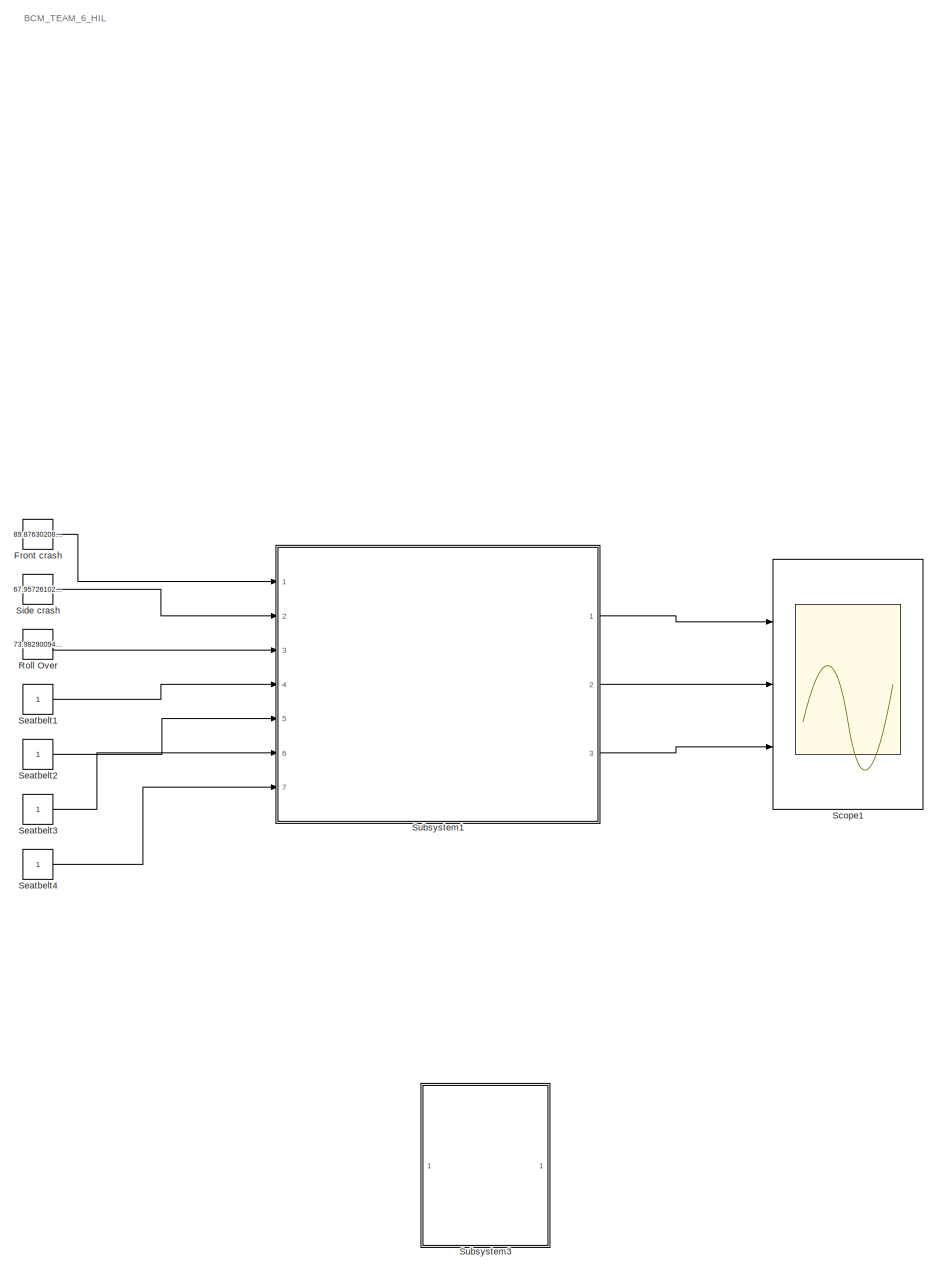
[diagram: root canvas - part 1/12, top center region]
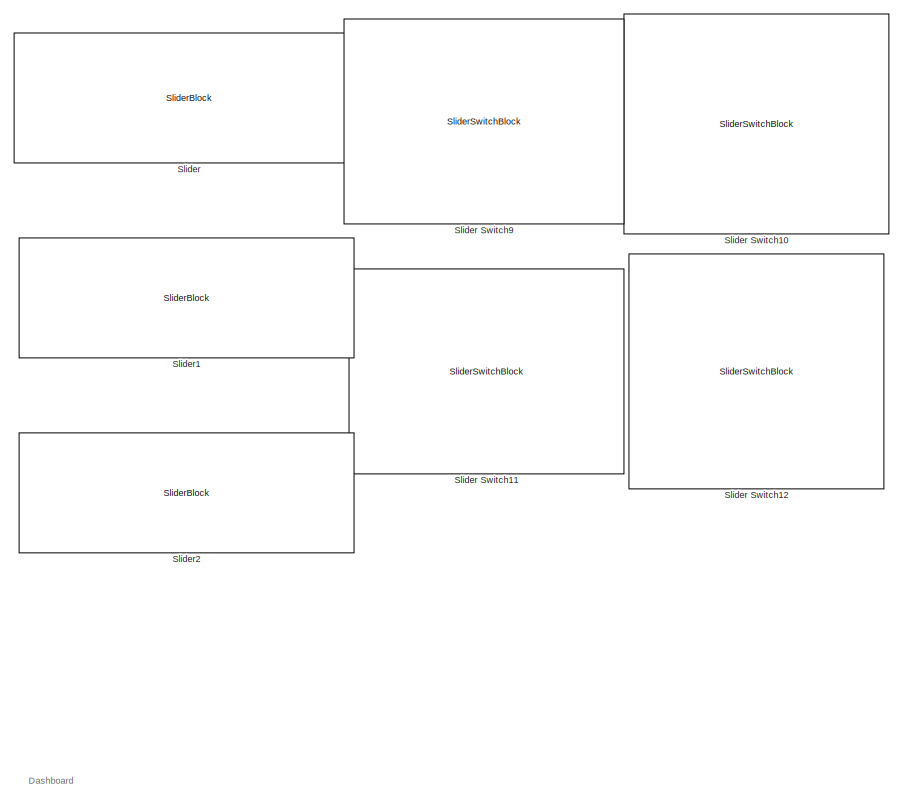
[diagram: root canvas - part 2/12, top left region]
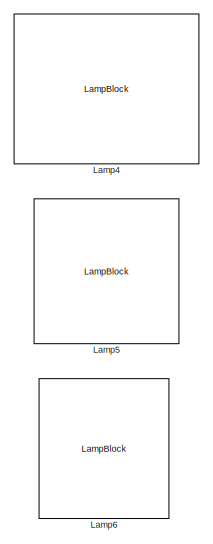
[diagram: root canvas - part 3/12, top right region]
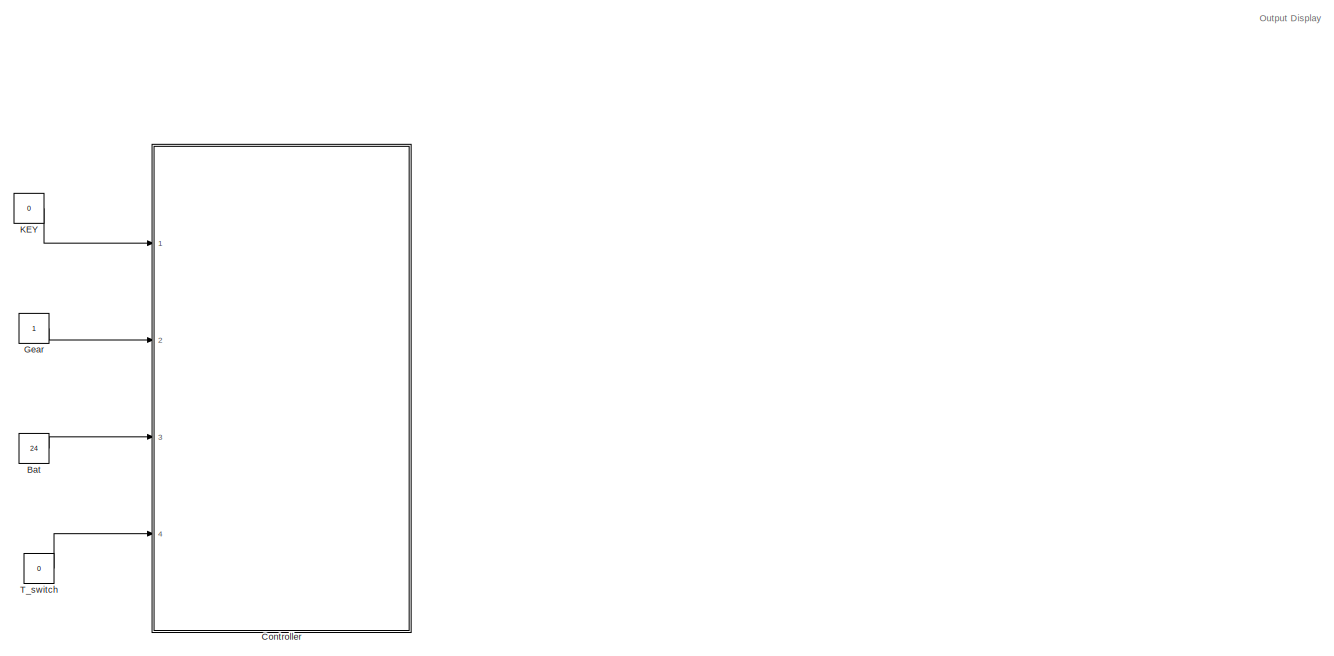
[diagram: root canvas - part 4/12, central region]
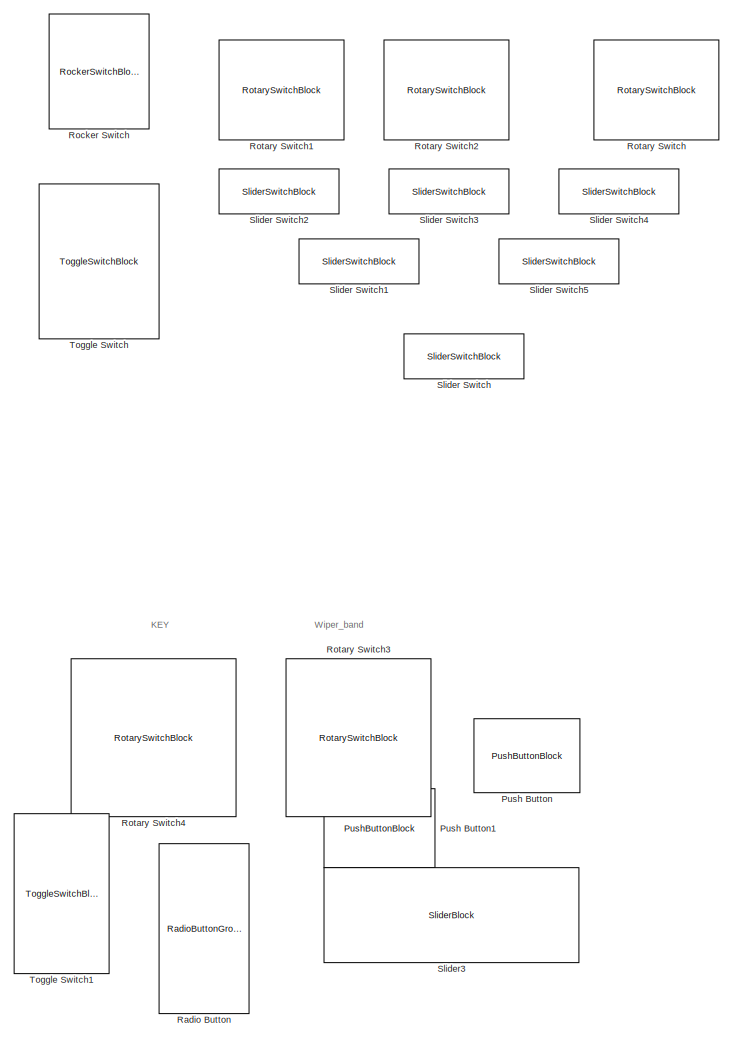
[diagram: root canvas - part 5/12, middle left region]
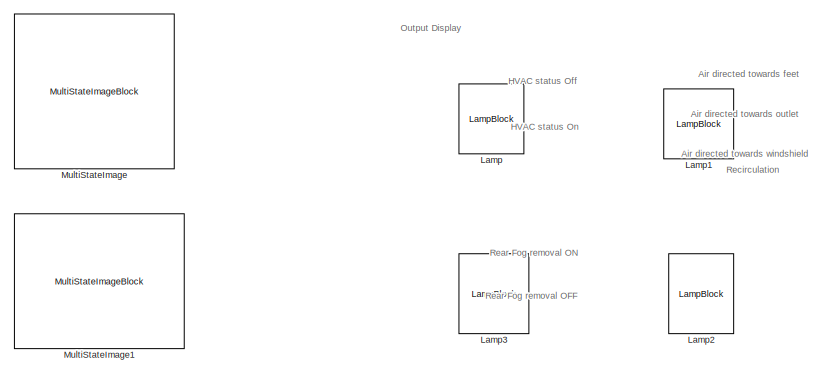
[diagram: root canvas - part 6/12, middle right region]
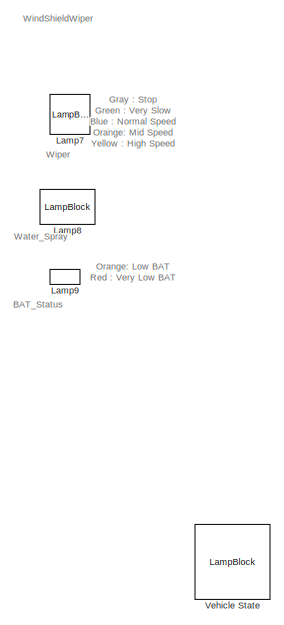
[diagram: root canvas - part 7/12, middle right region]
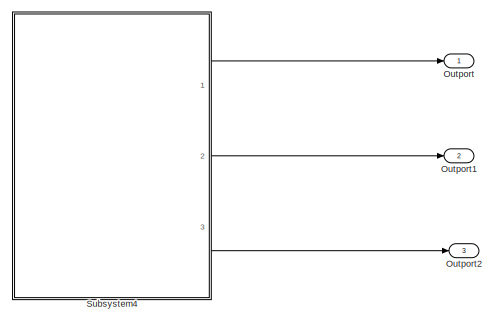
[diagram: root canvas - part 8/12, central region]
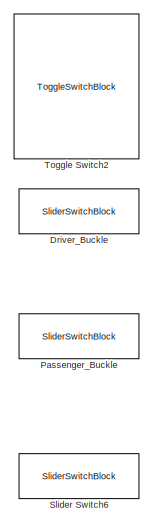
[diagram: root canvas - part 9/12, bottom left region]
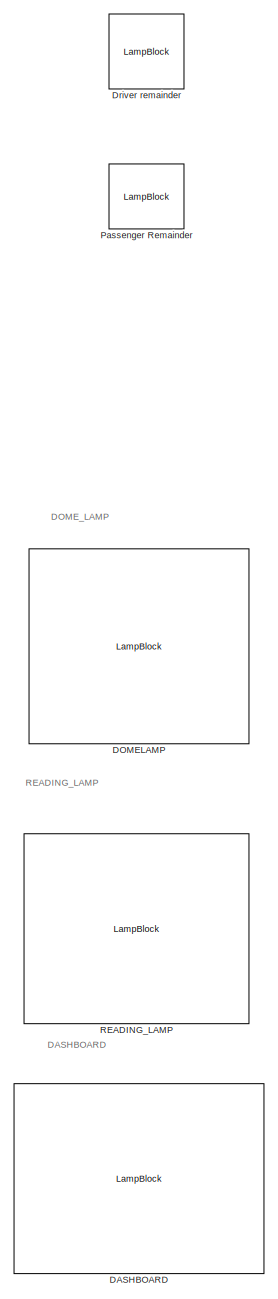
[diagram: root canvas - part 10/12, bottom right region]
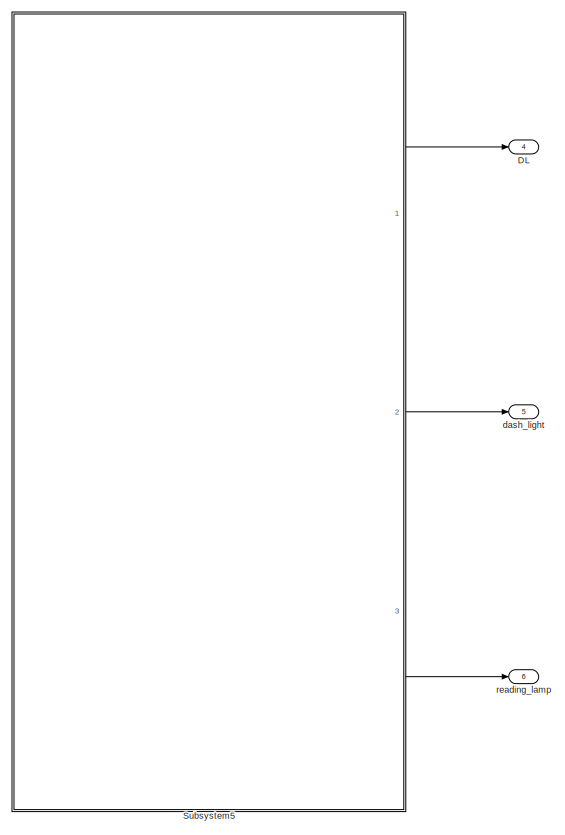
[diagram: root canvas - part 11/12, bottom center region]
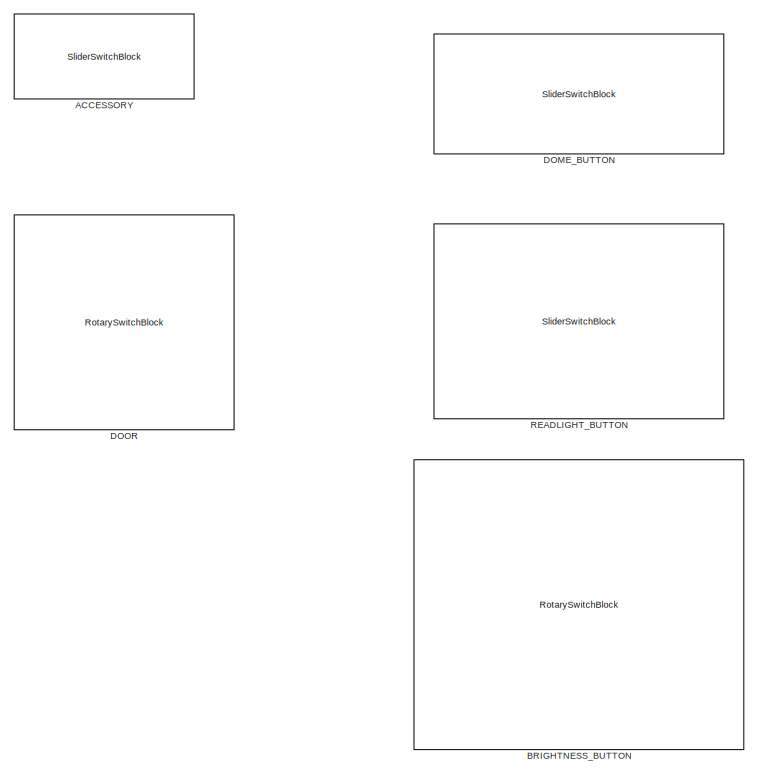
[diagram: root canvas - part 12/12, bottom left region]
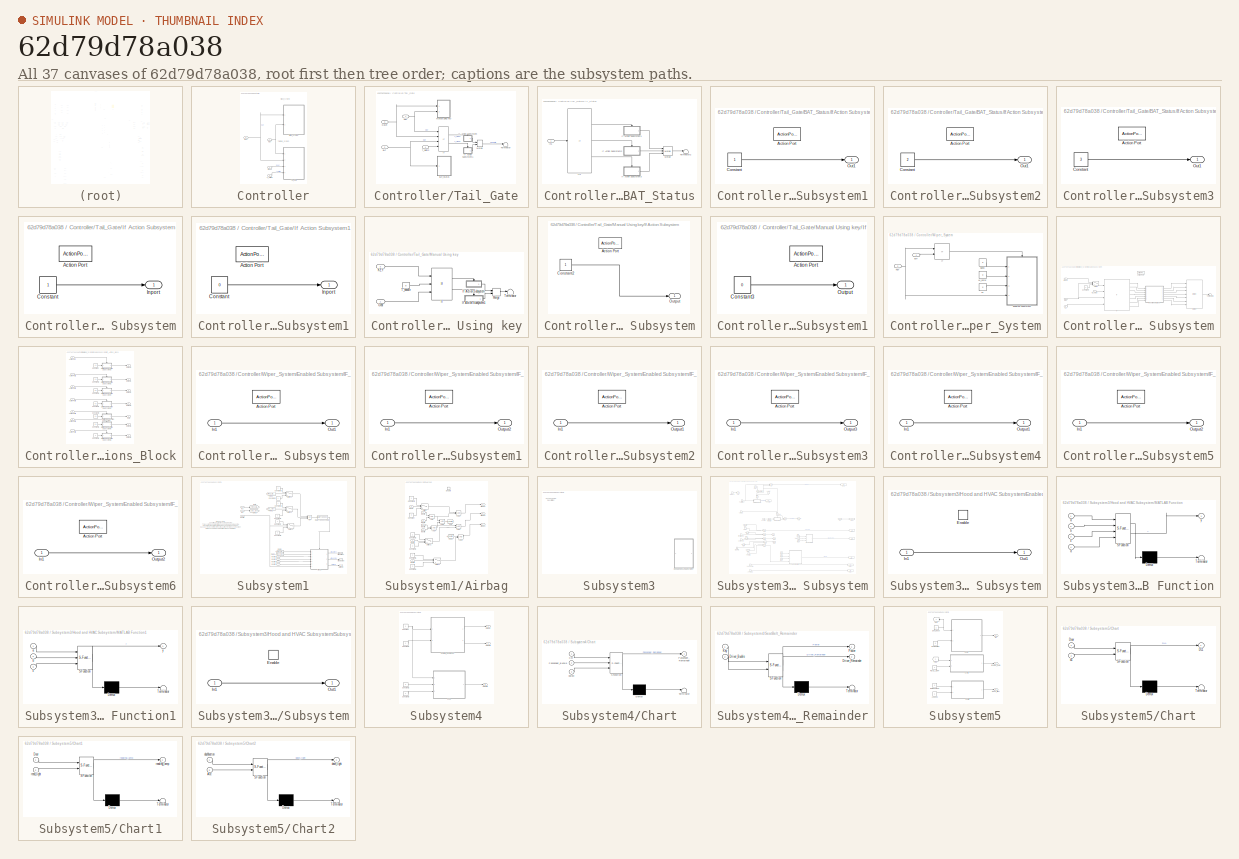
[diagram: thumbnail index - all 37 canvases of the model, root first then tree order]
MODEL slx_62d79d78a038
KIND model
CONFIG AbsTol = auto
CONFIG EnableMultiTasking = off
CONFIG FixedStep = auto
CONFIG MaxStep = auto
CONFIG MinStep = auto
CONFIG RelTol = 1e-3
CONFIG SampleTimeConstraint = Unconstrained
CONFIG SolverName = VariableStepAuto
CONFIG StartTime = 0.0
CONFIG StopTime = 10.0
BLOCK [SliderSwitchBlock]  Passenger_Buckle
BLOCK [SliderSwitchBlock] ACCESSORY
BLOCK [RotarySwitchBlock] BRIGHTNESS_BUTTON
BLOCK [Constant] Bat
  Value = 24
BLOCK [SubSystem] Controller
  Ports = [4]
  RequestExecContextInheritance = off
BLOCK [Inport] Controller/BAT
  Port = 3
BLOCK [Inport] Controller/GEAR
  Port = 2
BLOCK [Inport] Controller/KEY
BLOCK [Inport] Controller/T_Switch
  Port = 4
BLOCK [SubSystem] Controller/Tail_Gate
  Ports = [4]
  RequestExecContextInheritance = off
BLOCK [Inport] Controller/Tail_Gate/BAT
  Port = 2
BLOCK [SubSystem] Controller/Tail_Gate/BAT_Status
  Ports = [1]
  RequestExecContextInheritance = off
BLOCK [SubSystem] Controller/Tail_Gate/BAT_Status/If Action Subsystem1
  Ports = [0, 1, 0, 0, 0, 0, 0, 1]
  RequestExecContextInheritance = off
  TreatAsAtomicUnit = on
BLOCK [ActionPort] Controller/Tail_Gate/BAT_Status/If Action Subsystem1/Action Port
  ActionPortLabel = if(u1 >=22)
BLOCK [Constant] Controller/Tail_Gate/BAT_Status/If Action Subsystem1/Constant
BLOCK [Outport] Controller/Tail_Gate/BAT_Status/If Action Subsystem1/Out1
BLOCK [SubSystem] Controller/Tail_Gate/BAT_Status/If Action Subsystem2
  Ports = [0, 1, 0, 0, 0, 0, 0, 1]
  RequestExecContextInheritance = off
  TreatAsAtomicUnit = on
BLOCK [ActionPort] Controller/Tail_Gate/BAT_Status/If Action Subsystem2/Action Port
  ActionPortLabel = elseif(u1<22 & u1>18)
BLOCK [Constant] Controller/Tail_Gate/BAT_Status/If Action Subsystem2/Constant
  Value = 2
BLOCK [Outport] Controller/Tail_Gate/BAT_Status/If Action Subsystem2/Out1
BLOCK [SubSystem] Controller/Tail_Gate/BAT_Status/If Action Subsystem3
  Ports = [0, 1, 0, 0, 0, 0, 0, 1]
  RequestExecContextInheritance = off
  TreatAsAtomicUnit = on
BLOCK [ActionPort] Controller/Tail_Gate/BAT_Status/If Action Subsystem3/Action Port
  ActionPortLabel = elseif( u1<15)
BLOCK [Constant] Controller/Tail_Gate/BAT_Status/If Action Subsystem3/Constant
  Value = 3
BLOCK [Outport] Controller/Tail_Gate/BAT_Status/If Action Subsystem3/Out1
BLOCK [If] Controller/Tail_Gate/BAT_Status/If1
  ElseIfExpressions = u1<22 & u1>18, u1<15
  IfExpression = u1 >=22
  Ports = [1, 3]
  ShowElse = off
BLOCK [Inport] Controller/Tail_Gate/BAT_Status/In1
BLOCK [Merge] Controller/Tail_Gate/BAT_Status/Merge
  Inputs = 3
  Ports = [3, 1]
BLOCK [Terminator] Controller/Tail_Gate/BAT_Status/Terminator2
BLOCK [Inport] Controller/Tail_Gate/GEAR
  Port = 3
BLOCK [If] Controller/Tail_Gate/If
  IfExpression = (u1 >=1 & u2==1 & u3 >20 & u4 ==1)|(u1 == 2 & u2==1 & u4 ==1)
  NumInputs = 4
  Ports = [4, 2]
BLOCK [SubSystem] Controller/Tail_Gate/If Action Subsystem
  Ports = [0, 1, 0, 0, 0, 0, 0, 1]
  RequestExecContextInheritance = off
  TreatAsAtomicUnit = on
BLOCK [ActionPort] Controller/Tail_Gate/If Action Subsystem/Action Port
  ActionPortLabel = if((u1 >=1 & u2==1 & u3 >20 & u4 ==1)|(u1 == 2 & u2==1 & u4 ==1))
BLOCK [Constant] Controller/Tail_Gate/If Action Subsystem/Constant
BLOCK [Outport] Controller/Tail_Gate/If Action Subsystem/Inport
BLOCK [SubSystem] Controller/Tail_Gate/If Action Subsystem1
  Ports = [0, 1, 0, 0, 0, 0, 0, 1]
  RequestExecContextInheritance = off
  TreatAsAtomicUnit = on
BLOCK [ActionPort] Controller/Tail_Gate/If Action Subsystem1/Action Port
  ActionPortLabel = else
BLOCK [Constant] Controller/Tail_Gate/If Action Subsystem1/Constant
  Value = 0
BLOCK [Outport] Controller/Tail_Gate/If Action Subsystem1/Inport
BLOCK [Inport] Controller/Tail_Gate/KEY
BLOCK [SubSystem] Controller/Tail_Gate/Manual Using key
  Ports = [2]
  RequestExecContextInheritance = off
BLOCK [Inport] Controller/Tail_Gate/Manual Using key/Gear
BLOCK [If] Controller/Tail_Gate/Manual Using key/If
  IfExpression = u1 == 0 & u2==1 & u3==1
  NumInputs = 3
  Ports = [3, 2]
BLOCK [SubSystem] Controller/Tail_Gate/Manual Using key/If Action Subsystem
  Ports = [0, 1, 0, 0, 0, 0, 0, 1]
  RequestExecContextInheritance = off
  TreatAsAtomicUnit = on
BLOCK [ActionPort] Controller/Tail_Gate/Manual Using key/If Action Subsystem/Action Port
  ActionPortLabel = if(u1 == 0 & u2==1 & u3==1)
BLOCK [Constant] Controller/Tail_Gate/Manual Using key/If Action Subsystem/Constant2
BLOCK [Outport] Controller/Tail_Gate/Manual Using key/If Action Subsystem/Output
BLOCK [SubSystem] Controller/Tail_Gate/Manual Using key/If Action Subsystem1
  Ports = [0, 1, 0, 0, 0, 0, 0, 1]
  RequestExecContextInheritance = off
  TreatAsAtomicUnit = on
BLOCK [ActionPort] Controller/Tail_Gate/Manual Using key/If Action Subsystem1/Action Port
  ActionPortLabel = else
BLOCK [Constant] Controller/Tail_Gate/Manual Using key/If Action Subsystem1/Constant3
  Value = 0
BLOCK [Outport] Controller/Tail_Gate/Manual Using key/If Action Subsystem1/Output
BLOCK [Inport] Controller/Tail_Gate/Manual Using key/KEY
  Port = 2
BLOCK [Merge] Controller/Tail_Gate/Manual Using key/Merge
  Ports = [2, 1]
BLOCK [Constant] Controller/Tail_Gate/Manual Using key/T_handle
  Value = 0
BLOCK [Terminator] Controller/Tail_Gate/Manual Using key/Terminator
BLOCK [Merge] Controller/Tail_Gate/Merge
  Ports = [2, 1]
BLOCK [Inport] Controller/Tail_Gate/T_Switch
  Port = 4
BLOCK [Terminator] Controller/Tail_Gate/Terminator
BLOCK [SubSystem] Controller/Wiper_System
  Ports = [2]
  RequestExecContextInheritance = off
BLOCK [Constant] Controller/Wiper_System/1x
  Value = 0
BLOCK [Inport] Controller/Wiper_System/BAT
BLOCK [Constant] Controller/Wiper_System/Band
  Value = 0
BLOCK [SubSystem] Controller/Wiper_System/Enabled Subsystem
  Ports = [4, 0, 0, 0, 0, 0, 0, 1]
  RequestExecContextInheritance = off
  TreatAsAtomicUnit = on
BLOCK [Inport] Controller/Wiper_System/Enabled Subsystem/1x
  Port = 3
BLOCK [ActionPort] Controller/Wiper_System/Enabled Subsystem/Action Port
  ActionPortLabel = if((u1 >=1 & u2 >22)|u1==2)
BLOCK [Inport] Controller/Wiper_System/Enabled Subsystem/Band
BLOCK [Constant] Controller/Wiper_System/Enabled Subsystem/Constant7
  Value = 0
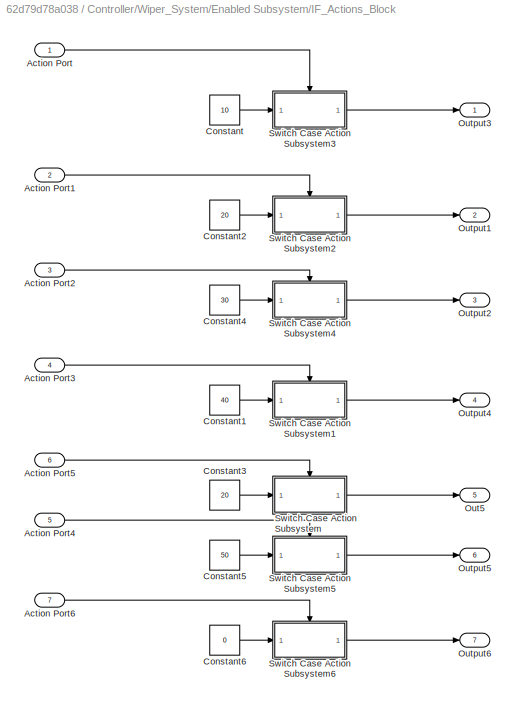
BLOCK [SubSystem] Controller/Wiper_System/Enabled Subsystem/IF_Actions_Block
  Ports = [7, 7]
  RequestExecContextInheritance = off
BLOCK [Inport] Controller/Wiper_System/Enabled Subsystem/IF_Actions_Block/Action Port
BLOCK [Inport] Controller/Wiper_System/Enabled Subsystem/IF_Actions_Block/Action Port1
  Port = 2
BLOCK [Inport] Controller/Wiper_System/Enabled Subsystem/IF_Actions_Block/Action Port2
  Port = 3
BLOCK [Inport] Controller/Wiper_System/Enabled Subsystem/IF_Actions_Block/Action Port3
  Port = 4
BLOCK [Inport] Controller/Wiper_System/Enabled Subsystem/IF_Actions_Block/Action Port4
  Port = 5
BLOCK [Inport] Controller/Wiper_System/Enabled Subsystem/IF_Actions_Block/Action Port5
  Port = 6
BLOCK [Inport] Controller/Wiper_System/Enabled Subsystem/IF_Actions_Block/Action Port6
  Port = 7
BLOCK [Constant] Controller/Wiper_System/Enabled Subsystem/IF_Actions_Block/Constant
  Value = 10
BLOCK [Constant] Controller/Wiper_System/Enabled Subsystem/IF_Actions_Block/Constant1
  Value = 40
BLOCK [Constant] Controller/Wiper_System/Enabled Subsystem/IF_Actions_Block/Constant2
  Value = 20
BLOCK [Constant] Controller/Wiper_System/Enabled Subsystem/IF_Actions_Block/Constant3
  Value = 20
BLOCK [Constant] Controller/Wiper_System/Enabled Subsystem/IF_Actions_Block/Constant4
  Value = 30
BLOCK [Constant] Controller/Wiper_System/Enabled Subsystem/IF_Actions_Block/Constant5
  Value = 50
BLOCK [Constant] Controller/Wiper_System/Enabled Subsystem/IF_Actions_Block/Constant6
  Value = 0
BLOCK [Outport] Controller/Wiper_System/Enabled Subsystem/IF_Actions_Block/Out5
  Port = 5
BLOCK [Outport] Controller/Wiper_System/Enabled Subsystem/IF_Actions_Block/Output1
  Port = 2
BLOCK [Outport] Controller/Wiper_System/Enabled Subsystem/IF_Actions_Block/Output2
  Port = 3
BLOCK [Outport] Controller/Wiper_System/Enabled Subsystem/IF_Actions_Block/Output3
BLOCK [Outport] Controller/Wiper_System/Enabled Subsystem/IF_Actions_Block/Output4
  Port = 4
BLOCK [Outport] Controller/Wiper_System/Enabled Subsystem/IF_Actions_Block/Output5
  Port = 6
BLOCK [Outport] Controller/Wiper_System/Enabled Subsystem/IF_Actions_Block/Output6
  Port = 7
BLOCK [SubSystem] Controller/Wiper_System/Enabled Subsystem/IF_Actions_Block/Switch Case Action Subsystem
  Ports = [1, 1, 0, 0, 0, 0, 0, 1]
  RequestExecContextInheritance = off
  TreatAsAtomicUnit = on
BLOCK [ActionPort] Controller/Wiper_System/Enabled Subsystem/IF_Actions_Block/Switch Case Action Subsystem/Action Port
  ActionPortLabel = elseif((u4==1&u1==0&u2==0&u3>=1))
BLOCK [Inport] Controller/Wiper_System/Enabled Subsystem/IF_Actions_Block/Switch Case Action Subsystem/In1
BLOCK [Outport] Controller/Wiper_System/Enabled Subsystem/IF_Actions_Block/Switch Case Action Subsystem/Out1
BLOCK [SubSystem] Controller/Wiper_System/Enabled Subsystem/IF_Actions_Block/Switch Case Action Subsystem1
  Ports = [1, 1, 0, 0, 0, 0, 0, 1]
  RequestExecContextInheritance = off
  TreatAsAtomicUnit = on
BLOCK [ActionPort] Controller/Wiper_System/Enabled Subsystem/IF_Actions_Block/Switch Case Action Subsystem1/Action Port
  ActionPortLabel = elseif((u1 ==4&u2==1&u3==2)|u1==4)
BLOCK [Inport] Controller/Wiper_System/Enabled Subsystem/IF_Actions_Block/Switch Case Action Subsystem1/In1
BLOCK [Outport] Controller/Wiper_System/Enabled Subsystem/IF_Actions_Block/Switch Case Action Subsystem1/Output2
BLOCK [SubSystem] Controller/Wiper_System/Enabled Subsystem/IF_Actions_Block/Switch Case Action Subsystem2
  Ports = [1, 1, 0, 0, 0, 0, 0, 1]
  RequestExecContextInheritance = off
  TreatAsAtomicUnit = on
BLOCK [ActionPort] Controller/Wiper_System/Enabled Subsystem/IF_Actions_Block/Switch Case Action Subsystem2/Action Port
  ActionPortLabel = elseif((u1 ==2&u2==1&u3==2)|u1==2)
BLOCK [Inport] Controller/Wiper_System/Enabled Subsystem/IF_Actions_Block/Switch Case Action Subsystem2/In1
BLOCK [Outport] Controller/Wiper_System/Enabled Subsystem/IF_Actions_Block/Switch Case Action Subsystem2/Output1
BLOCK [SubSystem] Controller/Wiper_System/Enabled Subsystem/IF_Actions_Block/Switch Case Action Subsystem3
  Ports = [1, 1, 0, 0, 0, 0, 0, 1]
  RequestExecContextInheritance = off
  TreatAsAtomicUnit = on
BLOCK [ActionPort] Controller/Wiper_System/Enabled Subsystem/IF_Actions_Block/Switch Case Action Subsystem3/Action Port
  ActionPortLabel = if((u1 ==1&u2==1&u3==2)|u1==1)
BLOCK [Inport] Controller/Wiper_System/Enabled Subsystem/IF_Actions_Block/Switch Case Action Subsystem3/In1
BLOCK [Outport] Controller/Wiper_System/Enabled Subsystem/IF_Actions_Block/Switch Case Action Subsystem3/Output3
BLOCK [SubSystem] Controller/Wiper_System/Enabled Subsystem/IF_Actions_Block/Switch Case Action Subsystem4
  Ports = [1, 1, 0, 0, 0, 0, 0, 1]
  RequestExecContextInheritance = off
  TreatAsAtomicUnit = on
BLOCK [ActionPort] Controller/Wiper_System/Enabled Subsystem/IF_Actions_Block/Switch Case Action Subsystem4/Action Port
  ActionPortLabel = elseif((u1 ==3&u2==1&u3==2)|u1==3)
BLOCK [Inport] Controller/Wiper_System/Enabled Subsystem/IF_Actions_Block/Switch Case Action Subsystem4/In1
BLOCK [Outport] Controller/Wiper_System/Enabled Subsystem/IF_Actions_Block/Switch Case Action Subsystem4/Output1
BLOCK [SubSystem] Controller/Wiper_System/Enabled Subsystem/IF_Actions_Block/Switch Case Action Subsystem5
  Ports = [1, 1, 0, 0, 0, 0, 0, 1]
  RequestExecContextInheritance = off
  TreatAsAtomicUnit = on
BLOCK [ActionPort] Controller/Wiper_System/Enabled Subsystem/IF_Actions_Block/Switch Case Action Subsystem5/Action Port
  ActionPortLabel = elseif((u1==0&u2==1&u3>=1))
BLOCK [Inport] Controller/Wiper_System/Enabled Subsystem/IF_Actions_Block/Switch Case Action Subsystem5/In1
BLOCK [Outport] Controller/Wiper_System/Enabled Subsystem/IF_Actions_Block/Switch Case Action Subsystem5/Output2
BLOCK [SubSystem] Controller/Wiper_System/Enabled Subsystem/IF_Actions_Block/Switch Case Action Subsystem6
  Ports = [1, 1, 0, 0, 0, 0, 0, 1]
  RequestExecContextInheritance = off
  TreatAsAtomicUnit = on
BLOCK [ActionPort] Controller/Wiper_System/Enabled Subsystem/IF_Actions_Block/Switch Case Action Subsystem6/Action Port
  ActionPortLabel = else
BLOCK [Inport] Controller/Wiper_System/Enabled Subsystem/IF_Actions_Block/Switch Case Action Subsystem6/In1
BLOCK [Outport] Controller/Wiper_System/Enabled Subsystem/IF_Actions_Block/Switch Case Action Subsystem6/Output2
BLOCK [If] Controller/Wiper_System/Enabled Subsystem/If
  ElseIfExpressions = (u1 ==2&u2==1&u3==2)|u1==2,(u1 ==3&u2==1&u3==2)|u1==3,(u1 ==4&u2==1&u3==2)|u1==4,(u1==0&u2==1&u3>=1),(u4==1&u1==0&u2==0&u3>=1)
  IfExpression = (u1 ==1&u2==1&u3==2)|u1==1
  NumInputs = 4
  Ports = [4, 7]
BLOCK [Inport] Controller/Wiper_System/Enabled Subsystem/KEY
  Port = 4
BLOCK [Merge] Controller/Wiper_System/Enabled Subsystem/Merge
  Inputs = 7
  Ports = [7, 1]
BLOCK [Switch] Controller/Wiper_System/Enabled Subsystem/Switch
  Criteria = u2 > Threshold
  InputSameDT = off
  SaturateOnIntegerOverflow = off
  Threshold = 1
BLOCK [Terminator] Controller/Wiper_System/Enabled Subsystem/Terminator5
BLOCK [Inport] Controller/Wiper_System/Enabled Subsystem/W_spray
  Port = 2
BLOCK [If] Controller/Wiper_System/If
  IfExpression = (u1 >=1 & u2 >22)|u1==2
  NumInputs = 2
  Ports = [2, 1]
  ShowElse = off
BLOCK [Inport] Controller/Wiper_System/KEY
  Port = 2
BLOCK [Constant] Controller/Wiper_System/W_spray
  Value = 0
BLOCK [LampBlock] DASHBOARD
BLOCK [Outport] DL
  Port = 4
BLOCK [LampBlock] DOMELAMP
BLOCK [SliderSwitchBlock] DOME_BUTTON
BLOCK [RotarySwitchBlock] DOOR
BLOCK [LampBlock] Driver remainder
BLOCK [SliderSwitchBlock] Driver_Buckle
BLOCK [Constant] Front crash
  Value = 89.87630208333334
BLOCK [Constant] Gear
BLOCK [Constant] KEY
  Value = 0
BLOCK [LampBlock] Lamp
BLOCK [LampBlock] Lamp1
BLOCK [LampBlock] Lamp2
BLOCK [LampBlock] Lamp3
BLOCK [LampBlock] Lamp4
BLOCK [LampBlock] Lamp5
BLOCK [LampBlock] Lamp6
BLOCK [LampBlock] Lamp7
  LabelPosition = Hide
BLOCK [LampBlock] Lamp8
  LabelPosition = Hide
BLOCK [LampBlock] Lamp9
  LabelPosition = Hide
BLOCK [MultiStateImageBlock] MultiStateImage
BLOCK [MultiStateImageBlock] MultiStateImage1
BLOCK [Outport] Outport
BLOCK [Outport] Outport1
  Port = 2
BLOCK [Outport] Outport2
  Port = 3
BLOCK [LampBlock] Passenger Remainder
BLOCK [PushButtonBlock] Push Button
  ButtonText = Spray
  LabelPosition = Bottom
BLOCK [PushButtonBlock] Push Button1
  ButtonText = 1X_Wiper
BLOCK [LampBlock] READING_LAMP
BLOCK [SliderSwitchBlock] READLIGHT_BUTTON
BLOCK [RadioButtonGroup] Radio Button
  ButtonGroupName = Gear_Box
  LabelPosition = Hide
  SelectedLabel = P
BLOCK [RockerSwitchBlock] Rocker Switch
BLOCK [Constant] Roll   Over
  NameLocation = left
  Value = 73.98290094339622
BLOCK [RotarySwitchBlock] Rotary Switch
BLOCK [RotarySwitchBlock] Rotary Switch1
BLOCK [RotarySwitchBlock] Rotary Switch2
BLOCK [RotarySwitchBlock] Rotary Switch3
  LabelPosition = Hide
BLOCK [RotarySwitchBlock] Rotary Switch4
  LabelPosition = Hide
BLOCK [Scope] Scope1
  Floating = off
  NumInputPorts = 3
  Ports = [3]
  ScopeSpecificationString = Simulink.scopes.TimeScopeBlockCfg('CurrentConfiguration', extmgr.ConfigurationSet(extmgr.Configuration('Core','General UI',true),extmgr.Configuration('Core','Source UI',true),extmgr.Configuration('Sources','WiredSimulink',true),extmgr.Configuration('Visuals','Time Domain',true,'SerializedDisplays',{struct('MinYLimReal','-0.125','MaxYLimReal','1.125','YLabelReal','','MinYLimMag','0.00000','MaxYLimM...<+2594ch>
BLOCK [Constant] Seatbelt1
BLOCK [Constant] Seatbelt2
BLOCK [Constant] Seatbelt3
BLOCK [Constant] Seatbelt4
BLOCK [Constant] Side crash
  Value = 67.95726102941177
BLOCK [SliderBlock] Slider
BLOCK [SliderSwitchBlock] Slider Switch
BLOCK [SliderSwitchBlock] Slider Switch1
BLOCK [SliderSwitchBlock] Slider Switch10
BLOCK [SliderSwitchBlock] Slider Switch11
BLOCK [SliderSwitchBlock] Slider Switch12
BLOCK [SliderSwitchBlock] Slider Switch2
BLOCK [SliderSwitchBlock] Slider Switch3
BLOCK [SliderSwitchBlock] Slider Switch4
BLOCK [SliderSwitchBlock] Slider Switch5
BLOCK [SliderSwitchBlock] Slider Switch6
BLOCK [SliderSwitchBlock] Slider Switch9
BLOCK [SliderBlock] Slider1
BLOCK [SliderBlock] Slider2
BLOCK [SliderBlock] Slider3
  LabelPosition = Hide
  ScaleMax = 24
  ScaleMin = 12
  TickInterval = 6
BLOCK [SubSystem] Subsystem1
  Ports = [7, 3]
  RequestExecContextInheritance = off
BLOCK [SubSystem] Subsystem1/Airbag
  Ports = [7, 3, 1]
  RequestExecContextInheritance = off
  TreatAsAtomicUnit = on
BLOCK [Outport] Subsystem1/Airbag Side
  Port = 2
BLOCK [Outport] Subsystem1/Airbag front
BLOCK [Logic] Subsystem1/Airbag/AND
  AllPortsSameDT = off
  IconShape = distinctive
  OutDataTypeStr = boolean
  Ports = [2, 1]
BLOCK [Logic] Subsystem1/Airbag/AND1
  AllPortsSameDT = off
  IconShape = distinctive
  OutDataTypeStr = boolean
  Ports = [2, 1]
BLOCK [Logic] Subsystem1/Airbag/AND2
  AllPortsSameDT = off
  IconShape = distinctive
  OutDataTypeStr = boolean
  Ports = [2, 1]
BLOCK [Logic] Subsystem1/Airbag/AND3
  AllPortsSameDT = off
  IconShape = distinctive
  OutDataTypeStr = boolean
  Ports = [2, 1]
BLOCK [Logic] Subsystem1/Airbag/AND4
  AllPortsSameDT = off
  IconShape = distinctive
  OutDataTypeStr = boolean
  Ports = [2, 1]
BLOCK [Logic] Subsystem1/Airbag/AND5
  AllPortsSameDT = off
  IconShape = distinctive
  OutDataTypeStr = boolean
  Ports = [2, 1]
BLOCK [Outport] Subsystem1/Airbag/Airbag1
BLOCK [Outport] Subsystem1/Airbag/Airbag2
  Port = 2
BLOCK [Outport] Subsystem1/Airbag/Airbag3
  Port = 3
BLOCK [Constant] Subsystem1/Airbag/Constant
  Value = 0
BLOCK [Constant] Subsystem1/Airbag/Constant1
  Value = 0
BLOCK [Constant] Subsystem1/Airbag/Constant2
BLOCK [Constant] Subsystem1/Airbag/Constant3
BLOCK [Constant] Subsystem1/Airbag/Constant4
  Value = 0
BLOCK [Constant] Subsystem1/Airbag/Constant5
BLOCK [EnablePort] Subsystem1/Airbag/Enable
  Ports = []
BLOCK [From] Subsystem1/Airbag/From1
  GotoTag = All_seatbelt
BLOCK [Goto] Subsystem1/Airbag/Goto
  GotoTag = All_seatbelt
BLOCK [Inport] Subsystem1/Airbag/Inport
BLOCK [Inport] Subsystem1/Airbag/Inport1
  Port = 2
BLOCK [Inport] Subsystem1/Airbag/Inport2
  Port = 7
BLOCK [Inport] Subsystem1/Airbag/Inport3
  Port = 3
BLOCK [Inport] Subsystem1/Airbag/Inport4
  Port = 4
BLOCK [Inport] Subsystem1/Airbag/Inport5
  Port = 5
BLOCK [Inport] Subsystem1/Airbag/Inport6
  Port = 6
BLOCK [Switch] Subsystem1/Airbag/Switch
  Criteria = u2 > Threshold
  InputSameDT = off
  SaturateOnIntegerOverflow = off
  Threshold = 50
BLOCK [Switch] Subsystem1/Airbag/Switch1
  Criteria = u2 > Threshold
  InputSameDT = off
  SaturateOnIntegerOverflow = off
  Threshold = 50
BLOCK [Switch] Subsystem1/Airbag/Switch2
  Criteria = u2 > Threshold
  InputSameDT = off
  SaturateOnIntegerOverflow = off
  Threshold = 50
BLOCK [Outport] Subsystem1/All Airbag
  Port = 3
BLOCK [Constant] Subsystem1/Constant3
BLOCK [Constant] Subsystem1/Constant4
  Value = 0
BLOCK [Constant] Subsystem1/Constant5
BLOCK [Constant] Subsystem1/Constant6
  Value = 0
BLOCK [Constant] Subsystem1/Constant7
BLOCK [Constant] Subsystem1/Constant8
  Value = 0
BLOCK [DataTypeConversion] Subsystem1/Data Type Conversion
  RndMeth = Floor
  SaturateOnIntegerOverflow = off
BLOCK [From] Subsystem1/From2
  GotoTag = Side_crash
BLOCK [From] Subsystem1/From3
  GotoTag = Side_crash
BLOCK [From] Subsystem1/From4
  GotoTag = Front_Crash
BLOCK [From] Subsystem1/From5
  GotoTag = Front_Crash
BLOCK [Goto] Subsystem1/Goto
  GotoTag = Front_Crash
BLOCK [Goto] Subsystem1/Goto1
  GotoTag = Side_crash
BLOCK [Inport] Subsystem1/In1
BLOCK [Inport] Subsystem1/In2
  Port = 2
BLOCK [Inport] Subsystem1/Inport2
  Port = 3
BLOCK [Inport] Subsystem1/Inport3
  Port = 4
BLOCK [Inport] Subsystem1/Inport4
  Port = 5
BLOCK [Inport] Subsystem1/Inport5
  Port = 6
BLOCK [Inport] Subsystem1/Inport6
  Port = 7
BLOCK [Logic] Subsystem1/OR
  AllPortsSameDT = off
  IconShape = distinctive
  Inputs = 3
  Operator = OR
  OutDataTypeStr = boolean
  Ports = [3, 1]
BLOCK [Switch] Subsystem1/Switch1
  Criteria = u2 > Threshold
  InputSameDT = off
  SaturateOnIntegerOverflow = off
  Threshold = 50
BLOCK [Switch] Subsystem1/Switch2
  Criteria = u2 > Threshold
  InputSameDT = off
  SaturateOnIntegerOverflow = off
  Threshold = 50
BLOCK [Switch] Subsystem1/Switch3
  Criteria = u2 > Threshold
  InputSameDT = off
  SaturateOnIntegerOverflow = off
  Threshold = 50
BLOCK [SubSystem] Subsystem3
  Ports = []
  RequestExecContextInheritance = off
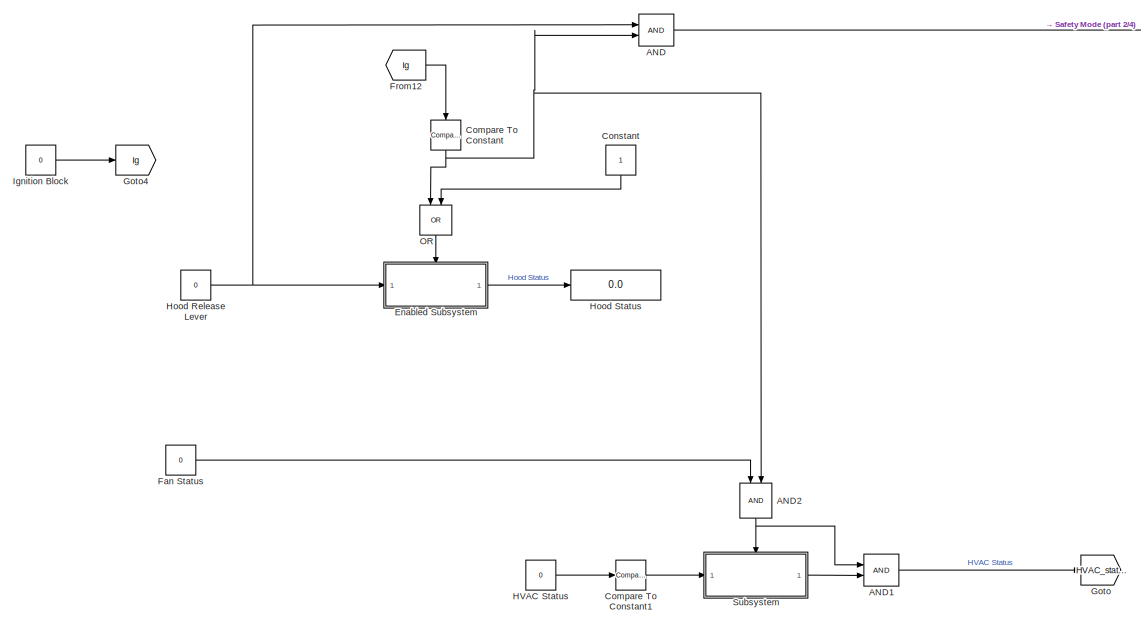
[diagram: Subsystem3/Hood and HVAC Subsystem - part 1/4, top left region]
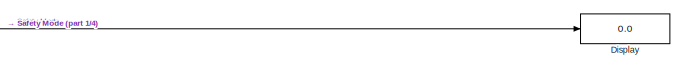
[diagram: Subsystem3/Hood and HVAC Subsystem - part 2/4, top right region]
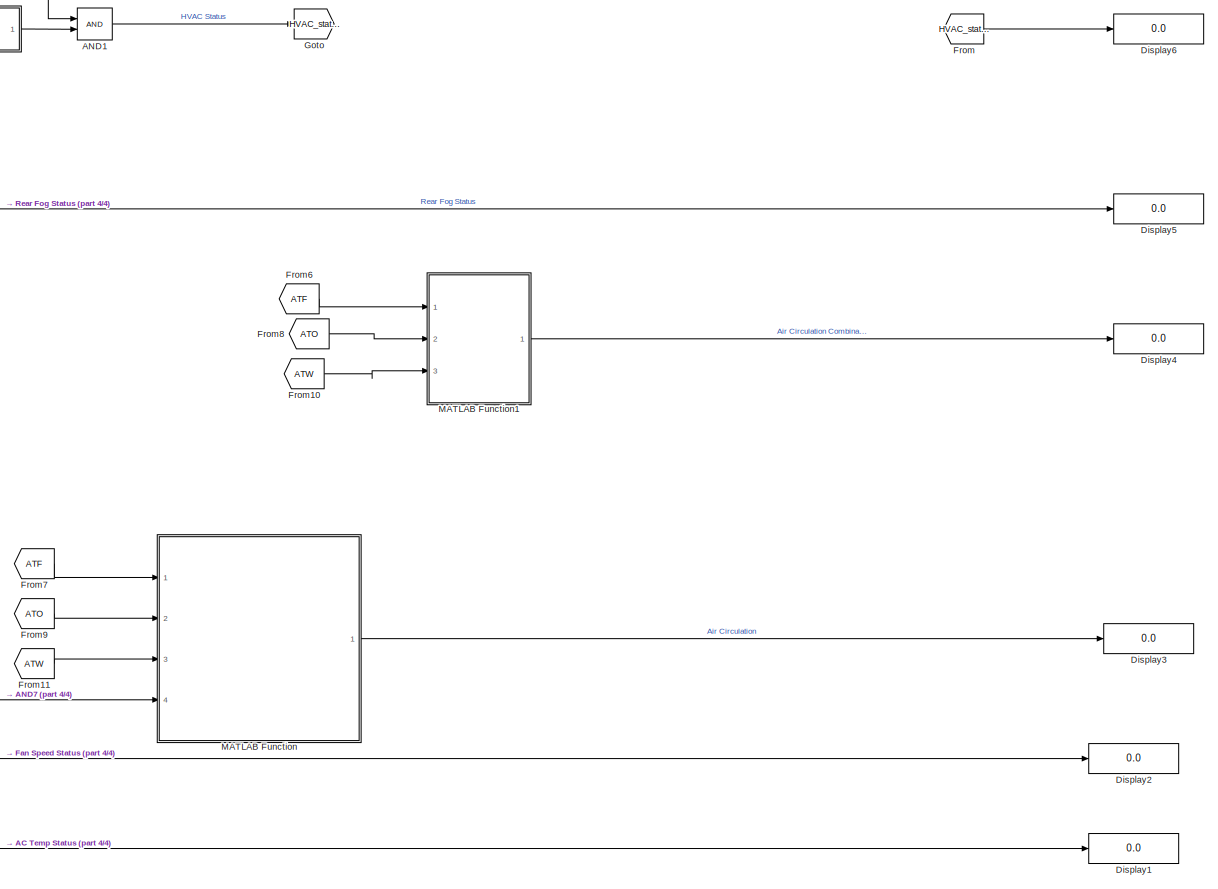
[diagram: Subsystem3/Hood and HVAC Subsystem - part 3/4, bottom right region]
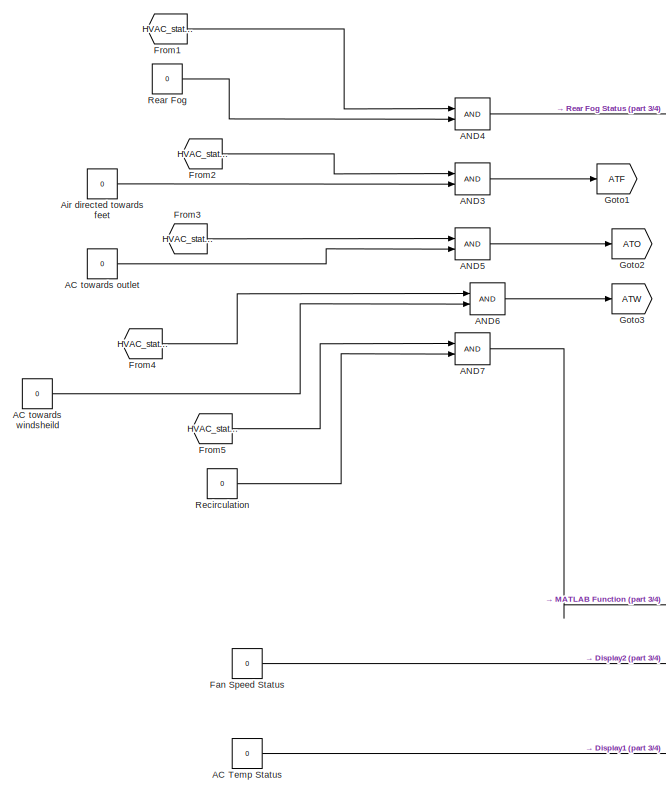
[diagram: Subsystem3/Hood and HVAC Subsystem - part 4/4, bottom left region]
BLOCK [SubSystem] Subsystem3/Hood and HVAC Subsystem
  Ports = []
  RequestExecContextInheritance = off
  TreatAsAtomicUnit = on
BLOCK [Constant] Subsystem3/Hood and HVAC Subsystem/AC Temp Status
  Value = 0
BLOCK [Constant] Subsystem3/Hood and HVAC Subsystem/AC towards outlet
  Value = 0
BLOCK [Constant] Subsystem3/Hood and HVAC Subsystem/AC towards windsheild
  Value = 0
BLOCK [Logic] Subsystem3/Hood and HVAC Subsystem/AND
  AllPortsSameDT = off
  IconShape = distinctive
  OutDataTypeStr = boolean
  Ports = [2, 1]
BLOCK [Logic] Subsystem3/Hood and HVAC Subsystem/AND1
  AllPortsSameDT = off
  IconShape = distinctive
  OutDataTypeStr = boolean
  Ports = [2, 1]
BLOCK [Logic] Subsystem3/Hood and HVAC Subsystem/AND2
  AllPortsSameDT = off
  IconShape = distinctive
  NameLocation = left
  OutDataTypeStr = boolean
  Ports = [2, 1]
BLOCK [Logic] Subsystem3/Hood and HVAC Subsystem/AND3
  AllPortsSameDT = off
  IconShape = distinctive
  OutDataTypeStr = boolean
  Ports = [2, 1]
BLOCK [Logic] Subsystem3/Hood and HVAC Subsystem/AND4
  AllPortsSameDT = off
  IconShape = distinctive
  OutDataTypeStr = boolean
  Ports = [2, 1]
BLOCK [Logic] Subsystem3/Hood and HVAC Subsystem/AND5
  AllPortsSameDT = off
  IconShape = distinctive
  OutDataTypeStr = boolean
  Ports = [2, 1]
BLOCK [Logic] Subsystem3/Hood and HVAC Subsystem/AND6
  AllPortsSameDT = off
  IconShape = distinctive
  OutDataTypeStr = boolean
  Ports = [2, 1]
BLOCK [Logic] Subsystem3/Hood and HVAC Subsystem/AND7
  AllPortsSameDT = off
  IconShape = distinctive
  OutDataTypeStr = boolean
  Ports = [2, 1]
BLOCK [Constant] Subsystem3/Hood and HVAC Subsystem/Air directed towards feet
  Value = 0
BLOCK [Reference] Subsystem3/Hood and HVAC Subsystem/Compare To Constant  REF=simulink/Logic and Bit
Operations/Compare
To Constant
  NameLocation = left
  Ports = [1, 1]
  SourceBlock = simulink/Logic and Bit\nOperations/Compare\nTo Constant
  SourceProductBaseCode = SL
  SourceType = Compare To Constant
BLOCK [Reference] Subsystem3/Hood and HVAC Subsystem/Compare To Constant1  REF=simulink/Logic and Bit
Operations/Compare
To Constant
  Ports = [1, 1]
  SourceBlock = simulink/Logic and Bit\nOperations/Compare\nTo Constant
  SourceProductBaseCode = SL
  SourceType = Compare To Constant
BLOCK [Constant] Subsystem3/Hood and HVAC Subsystem/Constant
  NameLocation = left
BLOCK [Display] Subsystem3/Hood and HVAC Subsystem/Display
  Decimation = 1
  Ports = [1]
BLOCK [Display] Subsystem3/Hood and HVAC Subsystem/Display1
  Decimation = 1
  Ports = [1]
BLOCK [Display] Subsystem3/Hood and HVAC Subsystem/Display2
  Decimation = 1
  Ports = [1]
BLOCK [Display] Subsystem3/Hood and HVAC Subsystem/Display3
  Decimation = 1
  Ports = [1]
BLOCK [Display] Subsystem3/Hood and HVAC Subsystem/Display4
  Decimation = 1
  Ports = [1]
BLOCK [Display] Subsystem3/Hood and HVAC Subsystem/Display5
  Decimation = 1
  Ports = [1]
BLOCK [Display] Subsystem3/Hood and HVAC Subsystem/Display6
  Decimation = 1
  Ports = [1]
BLOCK [SubSystem] Subsystem3/Hood and HVAC Subsystem/Enabled Subsystem
  Ports = [1, 1, 1]
  RequestExecContextInheritance = off
  TreatAsAtomicUnit = on
BLOCK [EnablePort] Subsystem3/Hood and HVAC Subsystem/Enabled Subsystem/Enable
  Ports = []
BLOCK [Inport] Subsystem3/Hood and HVAC Subsystem/Enabled Subsystem/In1
BLOCK [Outport] Subsystem3/Hood and HVAC Subsystem/Enabled Subsystem/Out1
  InitialOutput = 0
  VectorParamsAs1DForOutWhenUnconnected = off
BLOCK [Constant] Subsystem3/Hood and HVAC Subsystem/Fan Speed Status
  Value = 0
BLOCK [Constant] Subsystem3/Hood and HVAC Subsystem/Fan Status
  Value = 0
BLOCK [From] Subsystem3/Hood and HVAC Subsystem/From
  GotoTag = HVAC_status
  IconDisplay = Signal name
  TagVisibility = global
BLOCK [From] Subsystem3/Hood and HVAC Subsystem/From1
  GotoTag = HVAC_status
  TagVisibility = global
BLOCK [From] Subsystem3/Hood and HVAC Subsystem/From10
  GotoTag = ATW
  TagVisibility = global
BLOCK [From] Subsystem3/Hood and HVAC Subsystem/From11
  GotoTag = ATW
  TagVisibility = global
BLOCK [From] Subsystem3/Hood and HVAC Subsystem/From12
  GotoTag = Ig
  IconDisplay = Signal name
  TagVisibility = global
BLOCK [From] Subsystem3/Hood and HVAC Subsystem/From2
  GotoTag = HVAC_status
  TagVisibility = global
BLOCK [From] Subsystem3/Hood and HVAC Subsystem/From3
  GotoTag = HVAC_status
  TagVisibility = global
BLOCK [From] Subsystem3/Hood and HVAC Subsystem/From4
  GotoTag = HVAC_status
  TagVisibility = global
BLOCK [From] Subsystem3/Hood and HVAC Subsystem/From5
  GotoTag = HVAC_status
  TagVisibility = global
BLOCK [From] Subsystem3/Hood and HVAC Subsystem/From6
  GotoTag = ATF
  IconDisplay = Signal name
  TagVisibility = global
BLOCK [From] Subsystem3/Hood and HVAC Subsystem/From7
  GotoTag = ATF
  TagVisibility = global
BLOCK [From] Subsystem3/Hood and HVAC Subsystem/From8
  GotoTag = ATO
  TagVisibility = global
BLOCK [From] Subsystem3/Hood and HVAC Subsystem/From9
  GotoTag = ATO
  TagVisibility = global
BLOCK [Goto] Subsystem3/Hood and HVAC Subsystem/Goto
  GotoTag = HVAC_status
  IconDisplay = Signal name
  TagVisibility = global
BLOCK [Goto] Subsystem3/Hood and HVAC Subsystem/Goto1
  GotoTag = ATF
  IconDisplay = Signal name
  TagVisibility = global
BLOCK [Goto] Subsystem3/Hood and HVAC Subsystem/Goto2
  GotoTag = ATO
  TagVisibility = global
BLOCK [Goto] Subsystem3/Hood and HVAC Subsystem/Goto3
  GotoTag = ATW
  IconDisplay = Signal name
  TagVisibility = global
BLOCK [Goto] Subsystem3/Hood and HVAC Subsystem/Goto4
  GotoTag = Ig
  IconDisplay = Signal name
  TagVisibility = global
BLOCK [Constant] Subsystem3/Hood and HVAC Subsystem/HVAC Status
  Value = 0
BLOCK [Constant] Subsystem3/Hood and HVAC Subsystem/Hood Release Lever
  Value = 0
BLOCK [Display] Subsystem3/Hood and HVAC Subsystem/Hood Status
  Decimation = 1
  Ports = [1]
BLOCK [Constant] Subsystem3/Hood and HVAC Subsystem/Ignition Block
  Value = 0
BLOCK [SubSystem] Subsystem3/Hood and HVAC Subsystem/MATLAB Function
  ErrorFcn = Stateflow.Translate.translate
  PermitHierarchicalResolution = ExplicitOnly
  Ports = [4, 1]
  RequestExecContextInheritance = off
  SFBlockType = MATLAB Function
  TreatAsAtomicUnit = on
BLOCK [Demux] Subsystem3/Hood and HVAC Subsystem/MATLAB Function/ Demux 
  Outputs = 1
  Ports = [1, 1]
BLOCK [S-Function] Subsystem3/Hood and HVAC Subsystem/MATLAB Function/ SFunction 
  EnableBusSupport = on
  FunctionName = sf_sfun
  PortCounts = [4 2]
  Ports = [4, 2]
  SFcnIsStateOwnerBlock = off
  SFunctionDeploymentMode = off
  Tag = Stateflow S-Function 2
BLOCK [Terminator] Subsystem3/Hood and HVAC Subsystem/MATLAB Function/ Terminator 
BLOCK [Inport] Subsystem3/Hood and HVAC Subsystem/MATLAB Function/a
BLOCK [Inport] Subsystem3/Hood and HVAC Subsystem/MATLAB Function/b
  Port = 2
BLOCK [Inport] Subsystem3/Hood and HVAC Subsystem/MATLAB Function/c
  Port = 3
BLOCK [Inport] Subsystem3/Hood and HVAC Subsystem/MATLAB Function/d
  Port = 4
BLOCK [Outport] Subsystem3/Hood and HVAC Subsystem/MATLAB Function/y
BLOCK [SubSystem] Subsystem3/Hood and HVAC Subsystem/MATLAB Function1
  ErrorFcn = Stateflow.Translate.translate
  PermitHierarchicalResolution = ExplicitOnly
  Ports = [3, 1]
  RequestExecContextInheritance = off
  SFBlockType = MATLAB Function
  TreatAsAtomicUnit = on
BLOCK [Demux] Subsystem3/Hood and HVAC Subsystem/MATLAB Function1/ Demux 
  Outputs = 1
  Ports = [1, 1]
BLOCK [S-Function] Subsystem3/Hood and HVAC Subsystem/MATLAB Function1/ SFunction 
  EnableBusSupport = on
  FunctionName = sf_sfun
  PortCounts = [3 2]
  Ports = [3, 2]
  SFcnIsStateOwnerBlock = off
  SFunctionDeploymentMode = off
  Tag = Stateflow S-Function 1
BLOCK [Terminator] Subsystem3/Hood and HVAC Subsystem/MATLAB Function1/ Terminator 
BLOCK [Inport] Subsystem3/Hood and HVAC Subsystem/MATLAB Function1/a
BLOCK [Inport] Subsystem3/Hood and HVAC Subsystem/MATLAB Function1/b
  Port = 2
BLOCK [Inport] Subsystem3/Hood and HVAC Subsystem/MATLAB Function1/c
  Port = 3
BLOCK [Outport] Subsystem3/Hood and HVAC Subsystem/MATLAB Function1/y
BLOCK [Logic] Subsystem3/Hood and HVAC Subsystem/OR
  AllPortsSameDT = off
  IconShape = distinctive
  NameLocation = left
  Operator = OR
  OutDataTypeStr = boolean
  Ports = [2, 1]
BLOCK [Constant] Subsystem3/Hood and HVAC Subsystem/Rear Fog
  Value = 0
BLOCK [Constant] Subsystem3/Hood and HVAC Subsystem/Recirculation
  Value = 0
BLOCK [SubSystem] Subsystem3/Hood and HVAC Subsystem/Subsystem
  Ports = [1, 1, 1]
  RequestExecContextInheritance = off
BLOCK [EnablePort] Subsystem3/Hood and HVAC Subsystem/Subsystem/Enable
  Ports = []
BLOCK [Inport] Subsystem3/Hood and HVAC Subsystem/Subsystem/In1
BLOCK [Outport] Subsystem3/Hood and HVAC Subsystem/Subsystem/Out1
BLOCK [SubSystem] Subsystem4
  Ports = [0, 3]
  RequestExecContextInheritance = off
BLOCK [SubSystem] Subsystem4/Chart
  ErrorFcn = Stateflow.Translate.translate
  PermitHierarchicalResolution = ExplicitOnly
  Ports = [3, 1]
  RequestExecContextInheritance = off
  SFBlockType = Chart
  TreatAsAtomicUnit = on
BLOCK [Demux] Subsystem4/Chart/ Demux 
  Outputs = 1
  Ports = [1, 1]
BLOCK [S-Function] Subsystem4/Chart/ SFunction 
  EnableBusSupport = on
  FunctionName = sf_sfun
  PortCounts = [3 2]
  Ports = [3, 2]
  SFcnIsStateOwnerBlock = off
  SFunctionDeploymentMode = off
  Tag = Stateflow S-Function 3
BLOCK [Terminator] Subsystem4/Chart/ Terminator 
BLOCK [Inport] Subsystem4/Chart/Key
BLOCK [Inport] Subsystem4/Chart/Passenger_Buckle
  Port = 2
BLOCK [Outport] Subsystem4/Chart/Passenger_Remainder
BLOCK [Inport] Subsystem4/Chart/object
  Port = 3
BLOCK [Constant] Subsystem4/Constant
BLOCK [Constant] Subsystem4/Constant1
BLOCK [Constant] Subsystem4/Constant2
  Value = 0
BLOCK [Constant] Subsystem4/Constant3
BLOCK [Outport] Subsystem4/Outport
BLOCK [Outport] Subsystem4/Outport1
  Port = 2
BLOCK [Outport] Subsystem4/Outport2
  Port = 3
BLOCK [SubSystem] Subsystem4/SeatBelt_Remainder
  ErrorFcn = Stateflow.Translate.translate
  PermitHierarchicalResolution = ExplicitOnly
  Ports = [2, 2]
  RequestExecContextInheritance = off
  SFBlockType = Chart
  TreatAsAtomicUnit = on
BLOCK [Demux] Subsystem4/SeatBelt_Remainder/ Demux 
  Outputs = 1
  Ports = [1, 1]
BLOCK [S-Function] Subsystem4/SeatBelt_Remainder/ SFunction 
  EnableBusSupport = on
  FunctionName = sf_sfun
  PortCounts = [2 3]
  Ports = [2, 3]
  SFcnIsStateOwnerBlock = off
  SFunctionDeploymentMode = off
  Tag = Stateflow S-Function 4
BLOCK [Terminator] Subsystem4/SeatBelt_Remainder/ Terminator 
BLOCK [Inport] Subsystem4/SeatBelt_Remainder/Driver_Buckle
  Port = 2
BLOCK [Outport] Subsystem4/SeatBelt_Remainder/Driver_Remainder
  Port = 2
BLOCK [Inport] Subsystem4/SeatBelt_Remainder/Key
BLOCK [Outport] Subsystem4/SeatBelt_Remainder/Power
BLOCK [SubSystem] Subsystem5
  Ports = [0, 3]
  RequestExecContextInheritance = off
BLOCK [Constant] Subsystem5/ACCESS
BLOCK [Constant] Subsystem5/BRIGHTNESS
  Value = 0
BLOCK [SubSystem] Subsystem5/Chart
  ErrorFcn = Stateflow.Translate.translate
  PermitHierarchicalResolution = ExplicitOnly
  Ports = [2, 1]
  RequestExecContextInheritance = off
  SFBlockType = Chart
  TreatAsAtomicUnit = on
BLOCK [Demux] Subsystem5/Chart/ Demux 
  Outputs = 1
  Ports = [1, 1]
BLOCK [S-Function] Subsystem5/Chart/ SFunction 
  EnableBusSupport = on
  FunctionName = sf_sfun
  PortCounts = [2 2]
  Ports = [2, 2]
  SFcnIsStateOwnerBlock = off
  SFunctionDeploymentMode = off
  Tag = Stateflow S-Function 5
BLOCK [Terminator] Subsystem5/Chart/ Terminator 
BLOCK [Outport] Subsystem5/Chart/DL1
BLOCK [Inport] Subsystem5/Chart/Door
BLOCK [Inport] Subsystem5/Chart/d1
  Port = 2
BLOCK [SubSystem] Subsystem5/Chart1
  ErrorFcn = Stateflow.Translate.translate
  PermitHierarchicalResolution = ExplicitOnly
  Ports = [2, 1]
  RequestExecContextInheritance = off
  SFBlockType = Chart
  TreatAsAtomicUnit = on
BLOCK [Demux] Subsystem5/Chart1/ Demux 
  Outputs = 1
  Ports = [1, 1]
BLOCK [S-Function] Subsystem5/Chart1/ SFunction 
  EnableBusSupport = on
  FunctionName = sf_sfun
  PortCounts = [2 2]
  Ports = [2, 2]
  SFcnIsStateOwnerBlock = off
  SFunctionDeploymentMode = off
  Tag = Stateflow S-Function 6
BLOCK [Terminator] Subsystem5/Chart1/ Terminator 
BLOCK [Inport] Subsystem5/Chart1/Door
BLOCK [Inport] Subsystem5/Chart1/read_light
  Port = 2
BLOCK [Outport] Subsystem5/Chart1/reading_lamp
BLOCK [SubSystem] Subsystem5/Chart2
  ErrorFcn = Stateflow.Translate.translate
  PermitHierarchicalResolution = ExplicitOnly
  Ports = [2, 1]
  RequestExecContextInheritance = off
  SFBlockType = Chart
  TreatAsAtomicUnit = on
BLOCK [Demux] Subsystem5/Chart2/ Demux 
  Outputs = 1
  Ports = [1, 1]
BLOCK [S-Function] Subsystem5/Chart2/ SFunction 
  EnableBusSupport = on
  FunctionName = sf_sfun
  PortCounts = [2 2]
  Ports = [2, 2]
  SFcnIsStateOwnerBlock = off
  SFunctionDeploymentMode = off
  Tag = Stateflow S-Function 7
BLOCK [Terminator] Subsystem5/Chart2/ Terminator 
BLOCK [Inport] Subsystem5/Chart2/Acc
  Port = 2
BLOCK [Outport] Subsystem5/Chart2/dash_light
BLOCK [Inport] Subsystem5/Chart2/dashbutton
BLOCK [Outport] Subsystem5/DL
BLOCK [Constant] Subsystem5/Dome Button
  Value = 0
BLOCK [Constant] Subsystem5/Door_Input
BLOCK [From] Subsystem5/From
BLOCK [Goto] Subsystem5/Goto
  NameLocation = top
BLOCK [Constant] Subsystem5/READ_LIGHT
BLOCK [Outport] Subsystem5/dash_light
  Port = 2
BLOCK [Outport] Subsystem5/reading_lamp
  Port = 3
BLOCK [Constant] T_switch
  Value = 0
BLOCK [ToggleSwitchBlock] Toggle Switch
BLOCK [ToggleSwitchBlock] Toggle Switch1
  LabelPosition = Hide
BLOCK [ToggleSwitchBlock] Toggle Switch2
BLOCK [LampBlock] Vehicle State
BLOCK [Outport] dash_light
  Port = 5
BLOCK [Outport] reading_lamp
  Port = 6
ANNOTATION (root): Rear Fog removal OFF
ANNOTATION (root): Rear Fog removal ON
ANNOTATION (root): Air directed towards outlet
ANNOTATION (root): Recirculation
ANNOTATION (root): Air directed towards windshield
ANNOTATION (root): Air directed towards feet
ANNOTATION (root): HVAC status On
ANNOTATION (root): HVAC status Off
ANNOTATION (root): WindShieldWiper
ANNOTATION (root): KEY
ANNOTATION (root): Wiper_band
ANNOTATION (root): BCM_TEAM_6_HIL
ANNOTATION (root): Gray : Stop Green : Very Slow Blue : Normal Speed Orange: Mid Speed Yellow : High Speed
ANNOTATION (root): Orange: Low BAT Red : Very Low BAT
ANNOTATION (root): BAT_Status
ANNOTATION (root): Water_Spray
ANNOTATION (root): Wiper
ANNOTATION (root): DOME_LAMP
ANNOTATION (root): READING_LAMP
ANNOTATION (root): DASHBOARD
ANNOTATION (root): Dashboard
ANNOTATION (root): Output Display
ANNOTATION Controller: TailGate_System
ANNOTATION Controller: Wiper_system
ANNOTATION Subsystem1: Airbag System: Condition:Seatbelt should be weared This system consists of Crash sensors depending on the crash intensity here the slider value can be given as input based on the level of intesity the airbag at the Front,Side and Roof get inflated.Under Roll over of Car all the airbags are inflated
ANNOTATION Subsystem3: HVAC SYSTEM Des cription:
LINE Bat:1 -> Controller:3
NET Controller/BAT:1 -> Controller/Tail_Gate:2, Controller/Wiper_System:1
LINE Controller/GEAR:1 -> Controller/Tail_Gate:3
NET Controller/KEY:1 -> Controller/Tail_Gate:1, Controller/Wiper_System:2
LINE Controller/T_Switch:1 -> Controller/Tail_Gate:4
NET Controller/Tail_Gate/BAT:1 -> Controller/Tail_Gate/BAT_Status:1, Controller/Tail_Gate/If:3
LINE Controller/Tail_Gate/BAT_Status/If Action Subsystem1/Constant:1 -> Controller/Tail_Gate/BAT_Status/If Action Subsystem1/Out1:1
LINE Controller/Tail_Gate/BAT_Status/If Action Subsystem1:1 -> Controller/Tail_Gate/BAT_Status/Merge:1
LINE Controller/Tail_Gate/BAT_Status/If Action Subsystem2/Constant:1 -> Controller/Tail_Gate/BAT_Status/If Action Subsystem2/Out1:1
LINE Controller/Tail_Gate/BAT_Status/If Action Subsystem2:1 -> Controller/Tail_Gate/BAT_Status/Merge:2
LINE Controller/Tail_Gate/BAT_Status/If Action Subsystem3/Constant:1 -> Controller/Tail_Gate/BAT_Status/If Action Subsystem3/Out1:1
LINE Controller/Tail_Gate/BAT_Status/If Action Subsystem3:1 -> Controller/Tail_Gate/BAT_Status/Merge:3
LINE Controller/Tail_Gate/BAT_Status/If1:1 -> Controller/Tail_Gate/BAT_Status/If Action Subsystem1:ifaction
LINE Controller/Tail_Gate/BAT_Status/If1:2 -> Controller/Tail_Gate/BAT_Status/If Action Subsystem2:ifaction
LINE Controller/Tail_Gate/BAT_Status/If1:3 -> Controller/Tail_Gate/BAT_Status/If Action Subsystem3:ifaction
LINE Controller/Tail_Gate/BAT_Status/In1:1 -> Controller/Tail_Gate/BAT_Status/If1:1
LINE Controller/Tail_Gate/BAT_Status/Merge:1 -> Controller/Tail_Gate/BAT_Status/Terminator2:1
NET Controller/Tail_Gate/GEAR:1 -> Controller/Tail_Gate/If:2, Controller/Tail_Gate/Manual Using key:1
LINE Controller/Tail_Gate/If Action Subsystem/Constant:1 -> Controller/Tail_Gate/If Action Subsystem/Inport:1
LINE Controller/Tail_Gate/If Action Subsystem1/Constant:1 -> Controller/Tail_Gate/If Action Subsystem1/Inport:1
LINE Controller/Tail_Gate/If Action Subsystem1:1 -> Controller/Tail_Gate/Merge:2
LINE Controller/Tail_Gate/If Action Subsystem:1 -> Controller/Tail_Gate/Merge:1
LINE Controller/Tail_Gate/If:1 -> Controller/Tail_Gate/If Action Subsystem:ifaction
LINE Controller/Tail_Gate/If:2 -> Controller/Tail_Gate/If Action Subsystem1:ifaction
NET Controller/Tail_Gate/KEY:1 -> Controller/Tail_Gate/If:1, Controller/Tail_Gate/Manual Using key:2
LINE Controller/Tail_Gate/Manual Using key/Gear:1 -> Controller/Tail_Gate/Manual Using key/If:3
LINE Controller/Tail_Gate/Manual Using key/If Action Subsystem/Constant2:1 -> Controller/Tail_Gate/Manual Using key/If Action Subsystem/Output:1
LINE Controller/Tail_Gate/Manual Using key/If Action Subsystem1/Constant3:1 -> Controller/Tail_Gate/Manual Using key/If Action Subsystem1/Output:1
LINE Controller/Tail_Gate/Manual Using key/If Action Subsystem1:1 -> Controller/Tail_Gate/Manual Using key/Merge:2
LINE Controller/Tail_Gate/Manual Using key/If Action Subsystem:1 -> Controller/Tail_Gate/Manual Using key/Merge:1
LINE Controller/Tail_Gate/Manual Using key/If:1 -> Controller/Tail_Gate/Manual Using key/If Action Subsystem:ifaction
LINE Controller/Tail_Gate/Manual Using key/If:2 -> Controller/Tail_Gate/Manual Using key/If Action Subsystem1:ifaction
LINE Controller/Tail_Gate/Manual Using key/KEY:1 -> Controller/Tail_Gate/Manual Using key/If:1
LINE Controller/Tail_Gate/Manual Using key/Merge:1 -> Controller/Tail_Gate/Manual Using key/Terminator:1
LINE Controller/Tail_Gate/Manual Using key/T_handle:1 -> Controller/Tail_Gate/Manual Using key/If:2
LINE Controller/Tail_Gate/Merge:1 -> Controller/Tail_Gate/Terminator:1
LINE Controller/Tail_Gate/T_Switch:1 -> Controller/Tail_Gate/If:4
LINE Controller/Wiper_System/1x:1 -> Controller/Wiper_System/Enabled Subsystem:3
LINE Controller/Wiper_System/BAT:1 -> Controller/Wiper_System/If:2
LINE Controller/Wiper_System/Band:1 -> Controller/Wiper_System/Enabled Subsystem:1
LINE Controller/Wiper_System/Enabled Subsystem/1x:1 -> Controller/Wiper_System/Enabled Subsystem/If:4
LINE Controller/Wiper_System/Enabled Subsystem/Band:1 -> Controller/Wiper_System/Enabled Subsystem/Switch:1
LINE Controller/Wiper_System/Enabled Subsystem/Constant7:1 -> Controller/Wiper_System/Enabled Subsystem/Switch:3
LINE Controller/Wiper_System/Enabled Subsystem/IF_Actions_Block/Action Port1:1 -> Controller/Wiper_System/Enabled Subsystem/IF_Actions_Block/Switch Case Action Subsystem2:ifaction
LINE Controller/Wiper_System/Enabled Subsystem/IF_Actions_Block/Action Port2:1 -> Controller/Wiper_System/Enabled Subsystem/IF_Actions_Block/Switch Case Action Subsystem4:ifaction
LINE Controller/Wiper_System/Enabled Subsystem/IF_Actions_Block/Action Port3:1 -> Controller/Wiper_System/Enabled Subsystem/IF_Actions_Block/Switch Case Action Subsystem1:ifaction
LINE Controller/Wiper_System/Enabled Subsystem/IF_Actions_Block/Action Port4:1 -> Controller/Wiper_System/Enabled Subsystem/IF_Actions_Block/Switch Case Action Subsystem5:ifaction
LINE Controller/Wiper_System/Enabled Subsystem/IF_Actions_Block/Action Port5:1 -> Controller/Wiper_System/Enabled Subsystem/IF_Actions_Block/Switch Case Action Subsystem:ifaction
LINE Controller/Wiper_System/Enabled Subsystem/IF_Actions_Block/Action Port6:1 -> Controller/Wiper_System/Enabled Subsystem/IF_Actions_Block/Switch Case Action Subsystem6:ifaction
LINE Controller/Wiper_System/Enabled Subsystem/IF_Actions_Block/Action Port:1 -> Controller/Wiper_System/Enabled Subsystem/IF_Actions_Block/Switch Case Action Subsystem3:ifaction
LINE Controller/Wiper_System/Enabled Subsystem/IF_Actions_Block/Constant1:1 -> Controller/Wiper_System/Enabled Subsystem/IF_Actions_Block/Switch Case Action Subsystem1:1
LINE Controller/Wiper_System/Enabled Subsystem/IF_Actions_Block/Constant2:1 -> Controller/Wiper_System/Enabled Subsystem/IF_Actions_Block/Switch Case Action Subsystem2:1
LINE Controller/Wiper_System/Enabled Subsystem/IF_Actions_Block/Constant3:1 -> Controller/Wiper_System/Enabled Subsystem/IF_Actions_Block/Switch Case Action Subsystem:1
LINE Controller/Wiper_System/Enabled Subsystem/IF_Actions_Block/Constant4:1 -> Controller/Wiper_System/Enabled Subsystem/IF_Actions_Block/Switch Case Action Subsystem4:1
LINE Controller/Wiper_System/Enabled Subsystem/IF_Actions_Block/Constant5:1 -> Controller/Wiper_System/Enabled Subsystem/IF_Actions_Block/Switch Case Action Subsystem5:1
LINE Controller/Wiper_System/Enabled Subsystem/IF_Actions_Block/Constant6:1 -> Controller/Wiper_System/Enabled Subsystem/IF_Actions_Block/Switch Case Action Subsystem6:1
LINE Controller/Wiper_System/Enabled Subsystem/IF_Actions_Block/Constant:1 -> Controller/Wiper_System/Enabled Subsystem/IF_Actions_Block/Switch Case Action Subsystem3:1
LINE Controller/Wiper_System/Enabled Subsystem/IF_Actions_Block/Switch Case Action Subsystem/In1:1 -> Controller/Wiper_System/Enabled Subsystem/IF_Actions_Block/Switch Case Action Subsystem/Out1:1
LINE Controller/Wiper_System/Enabled Subsystem/IF_Actions_Block/Switch Case Action Subsystem1/In1:1 -> Controller/Wiper_System/Enabled Subsystem/IF_Actions_Block/Switch Case Action Subsystem1/Output2:1
LINE Controller/Wiper_System/Enabled Subsystem/IF_Actions_Block/Switch Case Action Subsystem1:1 -> Controller/Wiper_System/Enabled Subsystem/IF_Actions_Block/Output4:1
LINE Controller/Wiper_System/Enabled Subsystem/IF_Actions_Block/Switch Case Action Subsystem2/In1:1 -> Controller/Wiper_System/Enabled Subsystem/IF_Actions_Block/Switch Case Action Subsystem2/Output1:1
LINE Controller/Wiper_System/Enabled Subsystem/IF_Actions_Block/Switch Case Action Subsystem2:1 -> Controller/Wiper_System/Enabled Subsystem/IF_Actions_Block/Output1:1
LINE Controller/Wiper_System/Enabled Subsystem/IF_Actions_Block/Switch Case Action Subsystem3/In1:1 -> Controller/Wiper_System/Enabled Subsystem/IF_Actions_Block/Switch Case Action Subsystem3/Output3:1
LINE Controller/Wiper_System/Enabled Subsystem/IF_Actions_Block/Switch Case Action Subsystem3:1 -> Controller/Wiper_System/Enabled Subsystem/IF_Actions_Block/Output3:1
LINE Controller/Wiper_System/Enabled Subsystem/IF_Actions_Block/Switch Case Action Subsystem4/In1:1 -> Controller/Wiper_System/Enabled Subsystem/IF_Actions_Block/Switch Case Action Subsystem4/Output1:1
LINE Controller/Wiper_System/Enabled Subsystem/IF_Actions_Block/Switch Case Action Subsystem4:1 -> Controller/Wiper_System/Enabled Subsystem/IF_Actions_Block/Output2:1
LINE Controller/Wiper_System/Enabled Subsystem/IF_Actions_Block/Switch Case Action Subsystem5/In1:1 -> Controller/Wiper_System/Enabled Subsystem/IF_Actions_Block/Switch Case Action Subsystem5/Output2:1
LINE Controller/Wiper_System/Enabled Subsystem/IF_Actions_Block/Switch Case Action Subsystem5:1 -> Controller/Wiper_System/Enabled Subsystem/IF_Actions_Block/Output5:1
LINE Controller/Wiper_System/Enabled Subsystem/IF_Actions_Block/Switch Case Action Subsystem6/In1:1 -> Controller/Wiper_System/Enabled Subsystem/IF_Actions_Block/Switch Case Action Subsystem6/Output2:1
LINE Controller/Wiper_System/Enabled Subsystem/IF_Actions_Block/Switch Case Action Subsystem6:1 -> Controller/Wiper_System/Enabled Subsystem/IF_Actions_Block/Output6:1
LINE Controller/Wiper_System/Enabled Subsystem/IF_Actions_Block/Switch Case Action Subsystem:1 -> Controller/Wiper_System/Enabled Subsystem/IF_Actions_Block/Out5:1
LINE Controller/Wiper_System/Enabled Subsystem/IF_Actions_Block:1 -> Controller/Wiper_System/Enabled Subsystem/Merge:1
LINE Controller/Wiper_System/Enabled Subsystem/IF_Actions_Block:2 -> Controller/Wiper_System/Enabled Subsystem/Merge:2
LINE Controller/Wiper_System/Enabled Subsystem/IF_Actions_Block:3 -> Controller/Wiper_System/Enabled Subsystem/Merge:3
LINE Controller/Wiper_System/Enabled Subsystem/IF_Actions_Block:4 -> Controller/Wiper_System/Enabled Subsystem/Merge:4
LINE Controller/Wiper_System/Enabled Subsystem/IF_Actions_Block:5 -> Controller/Wiper_System/Enabled Subsystem/Merge:5
LINE Controller/Wiper_System/Enabled Subsystem/IF_Actions_Block:6 -> Controller/Wiper_System/Enabled Subsystem/Merge:6
LINE Controller/Wiper_System/Enabled Subsystem/IF_Actions_Block:7 -> Controller/Wiper_System/Enabled Subsystem/Merge:7
LINE Controller/Wiper_System/Enabled Subsystem/If:1 -> Controller/Wiper_System/Enabled Subsystem/IF_Actions_Block:1
LINE Controller/Wiper_System/Enabled Subsystem/If:2 -> Controller/Wiper_System/Enabled Subsystem/IF_Actions_Block:2
LINE Controller/Wiper_System/Enabled Subsystem/If:3 -> Controller/Wiper_System/Enabled Subsystem/IF_Actions_Block:3
LINE Controller/Wiper_System/Enabled Subsystem/If:4 -> Controller/Wiper_System/Enabled Subsystem/IF_Actions_Block:4
LINE Controller/Wiper_System/Enabled Subsystem/If:5 -> Controller/Wiper_System/Enabled Subsystem/IF_Actions_Block:5
LINE Controller/Wiper_System/Enabled Subsystem/If:6 -> Controller/Wiper_System/Enabled Subsystem/IF_Actions_Block:6
LINE Controller/Wiper_System/Enabled Subsystem/If:7 -> Controller/Wiper_System/Enabled Subsystem/IF_Actions_Block:7
NET Controller/Wiper_System/Enabled Subsystem/KEY:1 -> Controller/Wiper_System/Enabled Subsystem/If:3, Controller/Wiper_System/Enabled Subsystem/Switch:2
LINE Controller/Wiper_System/Enabled Subsystem/Merge:1 -> Controller/Wiper_System/Enabled Subsystem/Terminator5:1
LINE Controller/Wiper_System/Enabled Subsystem/Switch:1 -> Controller/Wiper_System/Enabled Subsystem/If:1
LINE Controller/Wiper_System/Enabled Subsystem/W_spray:1 -> Controller/Wiper_System/Enabled Subsystem/If:2
LINE Controller/Wiper_System/If:1 -> Controller/Wiper_System/Enabled Subsystem:ifaction
NET Controller/Wiper_System/KEY:1 -> Controller/Wiper_System/Enabled Subsystem:4, Controller/Wiper_System/If:1
LINE Controller/Wiper_System/W_spray:1 -> Controller/Wiper_System/Enabled Subsystem:2
LINE Front crash:1 -> Subsystem1:1
LINE Gear:1 -> Controller:2
LINE KEY:1 -> Controller:1
LINE Roll   Over:1 -> Subsystem1:3
LINE Seatbelt1:1 -> Subsystem1:4
LINE Seatbelt2:1 -> Subsystem1:5
LINE Seatbelt3:1 -> Subsystem1:6
LINE Seatbelt4:1 -> Subsystem1:7
LINE Side crash:1 -> Subsystem1:2
LINE Subsystem1/Airbag/AND1:1 -> Subsystem1/Airbag/Airbag2:1
LINE Subsystem1/Airbag/AND2:1 -> Subsystem1/Airbag/Airbag1:1
LINE Subsystem1/Airbag/AND3:1 -> Subsystem1/Airbag/Airbag3:1
NET Subsystem1/Airbag/AND4:1 -> Subsystem1/Airbag/AND1:1, Subsystem1/Airbag/AND5:2
LINE Subsystem1/Airbag/AND5:1 -> Subsystem1/Airbag/Goto:1
NET Subsystem1/Airbag/AND:1 -> Subsystem1/Airbag/AND2:2, Subsystem1/Airbag/AND5:1
LINE Subsystem1/Airbag/Constant1:1 -> Subsystem1/Airbag/Switch1:3
LINE Subsystem1/Airbag/Constant2:1 -> Subsystem1/Airbag/Switch1:1
LINE Subsystem1/Airbag/Constant3:1 -> Subsystem1/Airbag/Switch:1
LINE Subsystem1/Airbag/Constant4:1 -> Subsystem1/Airbag/Switch2:3
LINE Subsystem1/Airbag/Constant5:1 -> Subsystem1/Airbag/Switch2:1
LINE Subsystem1/Airbag/Constant:1 -> Subsystem1/Airbag/Switch:3
LINE Subsystem1/Airbag/From1:1 -> Subsystem1/Airbag/AND3:1
LINE Subsystem1/Airbag/Inport1:1 -> Subsystem1/Airbag/Switch1:2
LINE Subsystem1/Airbag/Inport2:1 -> Subsystem1/Airbag/Switch2:2
LINE Subsystem1/Airbag/Inport3:1 -> Subsystem1/Airbag/AND:1
LINE Subsystem1/Airbag/Inport4:1 -> Subsystem1/Airbag/AND:2
LINE Subsystem1/Airbag/Inport5:1 -> Subsystem1/Airbag/AND4:1
LINE Subsystem1/Airbag/Inport6:1 -> Subsystem1/Airbag/AND4:2
LINE Subsystem1/Airbag/Inport:1 -> Subsystem1/Airbag/Switch:2
LINE Subsystem1/Airbag/Switch1:1 -> Subsystem1/Airbag/AND1:2
LINE Subsystem1/Airbag/Switch2:1 -> Subsystem1/Airbag/AND3:2
LINE Subsystem1/Airbag/Switch:1 -> Subsystem1/Airbag/AND2:1
LINE Subsystem1/Airbag:1 -> Subsystem1/Airbag front:1
LINE Subsystem1/Airbag:2 -> Subsystem1/Airbag Side:1
LINE Subsystem1/Airbag:3 -> Subsystem1/All Airbag:1
LINE Subsystem1/Constant3:1 -> Subsystem1/Switch1:1
LINE Subsystem1/Constant4:1 -> Subsystem1/Switch1:3
LINE Subsystem1/Constant5:1 -> Subsystem1/Switch2:1
LINE Subsystem1/Constant6:1 -> Subsystem1/Switch2:3
LINE Subsystem1/Constant7:1 -> Subsystem1/Switch3:1
LINE Subsystem1/Constant8:1 -> Subsystem1/Switch3:3
LINE Subsystem1/Data Type Conversion:1 -> Subsystem1/Airbag:enable
LINE Subsystem1/From2:1 -> Subsystem1/Switch2:2
LINE Subsystem1/From3:1 -> Subsystem1/Airbag:2
LINE Subsystem1/From4:1 -> Subsystem1/Switch1:2
LINE Subsystem1/From5:1 -> Subsystem1/Airbag:1
LINE Subsystem1/In1:1 -> Subsystem1/Goto:1
LINE Subsystem1/In2:1 -> Subsystem1/Goto1:1
NET Subsystem1/Inport2:1 -> Subsystem1/Airbag:7, Subsystem1/Switch3:2
LINE Subsystem1/Inport3:1 -> Subsystem1/Airbag:3
LINE Subsystem1/Inport4:1 -> Subsystem1/Airbag:4
LINE Subsystem1/Inport5:1 -> Subsystem1/Airbag:5
LINE Subsystem1/Inport6:1 -> Subsystem1/Airbag:6
LINE Subsystem1/OR:1 -> Subsystem1/Data Type Conversion:1
LINE Subsystem1/Switch1:1 -> Subsystem1/OR:1
LINE Subsystem1/Switch2:1 -> Subsystem1/OR:2
LINE Subsystem1/Switch3:1 -> Subsystem1/OR:3
LINE Subsystem1:1 -> Scope1:1
LINE Subsystem1:2 -> Scope1:2
LINE Subsystem1:3 -> Scope1:3
LINE Subsystem3/Hood and HVAC Subsystem/AC Temp Status:1 -> Subsystem3/Hood and HVAC Subsystem/Display1:1
LINE Subsystem3/Hood and HVAC Subsystem/AC towards outlet:1 -> Subsystem3/Hood and HVAC Subsystem/AND5:2
LINE Subsystem3/Hood and HVAC Subsystem/AC towards windsheild:1 -> Subsystem3/Hood and HVAC Subsystem/AND6:2
LINE Subsystem3/Hood and HVAC Subsystem/AND1:1 -> Subsystem3/Hood and HVAC Subsystem/Goto:1
NET Subsystem3/Hood and HVAC Subsystem/AND2:1 -> Subsystem3/Hood and HVAC Subsystem/AND1:1, Subsystem3/Hood and HVAC Subsystem/Subsystem:enable
LINE Subsystem3/Hood and HVAC Subsystem/AND3:1 -> Subsystem3/Hood and HVAC Subsystem/Goto1:1
LINE Subsystem3/Hood and HVAC Subsystem/AND4:1 -> Subsystem3/Hood and HVAC Subsystem/Display5:1
LINE Subsystem3/Hood and HVAC Subsystem/AND5:1 -> Subsystem3/Hood and HVAC Subsystem/Goto2:1
LINE Subsystem3/Hood and HVAC Subsystem/AND6:1 -> Subsystem3/Hood and HVAC Subsystem/Goto3:1
LINE Subsystem3/Hood and HVAC Subsystem/AND7:1 -> Subsystem3/Hood and HVAC Subsystem/MATLAB Function:4
LINE Subsystem3/Hood and HVAC Subsystem/AND:1 -> Subsystem3/Hood and HVAC Subsystem/Display:1
LINE Subsystem3/Hood and HVAC Subsystem/Air directed towards feet:1 -> Subsystem3/Hood and HVAC Subsystem/AND3:2
LINE Subsystem3/Hood and HVAC Subsystem/Compare To Constant1:1 -> Subsystem3/Hood and HVAC Subsystem/Subsystem:1
NET Subsystem3/Hood and HVAC Subsystem/Compare To Constant:1 -> Subsystem3/Hood and HVAC Subsystem/AND2:2, Subsystem3/Hood and HVAC Subsystem/AND:2, Subsystem3/Hood and HVAC Subsystem/OR:1
LINE Subsystem3/Hood and HVAC Subsystem/Constant:1 -> Subsystem3/Hood and HVAC Subsystem/OR:2
LINE Subsystem3/Hood and HVAC Subsystem/Enabled Subsystem/In1:1 -> Subsystem3/Hood and HVAC Subsystem/Enabled Subsystem/Out1:1
LINE Subsystem3/Hood and HVAC Subsystem/Enabled Subsystem:1 -> Subsystem3/Hood and HVAC Subsystem/Hood Status:1
LINE Subsystem3/Hood and HVAC Subsystem/Fan Speed Status:1 -> Subsystem3/Hood and HVAC Subsystem/Display2:1
LINE Subsystem3/Hood and HVAC Subsystem/Fan Status:1 -> Subsystem3/Hood and HVAC Subsystem/AND2:1
LINE Subsystem3/Hood and HVAC Subsystem/From10:1 -> Subsystem3/Hood and HVAC Subsystem/MATLAB Function1:3
LINE Subsystem3/Hood and HVAC Subsystem/From11:1 -> Subsystem3/Hood and HVAC Subsystem/MATLAB Function:3
LINE Subsystem3/Hood and HVAC Subsystem/From12:1 -> Subsystem3/Hood and HVAC Subsystem/Compare To Constant:1
LINE Subsystem3/Hood and HVAC Subsystem/From1:1 -> Subsystem3/Hood and HVAC Subsystem/AND4:1
LINE Subsystem3/Hood and HVAC Subsystem/From2:1 -> Subsystem3/Hood and HVAC Subsystem/AND3:1
LINE Subsystem3/Hood and HVAC Subsystem/From3:1 -> Subsystem3/Hood and HVAC Subsystem/AND5:1
LINE Subsystem3/Hood and HVAC Subsystem/From4:1 -> Subsystem3/Hood and HVAC Subsystem/AND6:1
LINE Subsystem3/Hood and HVAC Subsystem/From5:1 -> Subsystem3/Hood and HVAC Subsystem/AND7:1
LINE Subsystem3/Hood and HVAC Subsystem/From6:1 -> Subsystem3/Hood and HVAC Subsystem/MATLAB Function1:1
LINE Subsystem3/Hood and HVAC Subsystem/From7:1 -> Subsystem3/Hood and HVAC Subsystem/MATLAB Function:1
LINE Subsystem3/Hood and HVAC Subsystem/From8:1 -> Subsystem3/Hood and HVAC Subsystem/MATLAB Function1:2
LINE Subsystem3/Hood and HVAC Subsystem/From9:1 -> Subsystem3/Hood and HVAC Subsystem/MATLAB Function:2
LINE Subsystem3/Hood and HVAC Subsystem/From:1 -> Subsystem3/Hood and HVAC Subsystem/Display6:1
LINE Subsystem3/Hood and HVAC Subsystem/HVAC Status:1 -> Subsystem3/Hood and HVAC Subsystem/Compare To Constant1:1
NET Subsystem3/Hood and HVAC Subsystem/Hood Release Lever:1 -> Subsystem3/Hood and HVAC Subsystem/AND:1, Subsystem3/Hood and HVAC Subsystem/Enabled Subsystem:1
LINE Subsystem3/Hood and HVAC Subsystem/Ignition Block:1 -> Subsystem3/Hood and HVAC Subsystem/Goto4:1
LINE Subsystem3/Hood and HVAC Subsystem/MATLAB Function1:1 -> Subsystem3/Hood and HVAC Subsystem/Display4:1
LINE Subsystem3/Hood and HVAC Subsystem/MATLAB Function:1 -> Subsystem3/Hood and HVAC Subsystem/Display3:1
LINE Subsystem3/Hood and HVAC Subsystem/OR:1 -> Subsystem3/Hood and HVAC Subsystem/Enabled Subsystem:enable
LINE Subsystem3/Hood and HVAC Subsystem/Rear Fog:1 -> Subsystem3/Hood and HVAC Subsystem/AND4:2
LINE Subsystem3/Hood and HVAC Subsystem/Recirculation:1 -> Subsystem3/Hood and HVAC Subsystem/AND7:2
LINE Subsystem3/Hood and HVAC Subsystem/Subsystem/In1:1 -> Subsystem3/Hood and HVAC Subsystem/Subsystem/Out1:1
LINE Subsystem3/Hood and HVAC Subsystem/Subsystem:1 -> Subsystem3/Hood and HVAC Subsystem/AND1:2
LINE Subsystem4/Chart:1 -> Subsystem4/Outport2:1
LINE Subsystem4/Constant1:1 -> Subsystem4/SeatBelt_Remainder:2
LINE Subsystem4/Constant2:1 -> Subsystem4/Chart:2
LINE Subsystem4/Constant3:1 -> Subsystem4/Chart:3
NET Subsystem4/Constant:1 -> Subsystem4/Chart:1, Subsystem4/SeatBelt_Remainder:1
LINE Subsystem4/SeatBelt_Remainder:1 -> Subsystem4/Outport:1
LINE Subsystem4/SeatBelt_Remainder:2 -> Subsystem4/Outport1:1
LINE Subsystem4:1 -> Outport:1
LINE Subsystem4:2 -> Outport1:1
LINE Subsystem4:3 -> Outport2:1
LINE Subsystem5/ACCESS:1 -> Subsystem5/Chart2:2
LINE Subsystem5/BRIGHTNESS:1 -> Subsystem5/Chart2:1
LINE Subsystem5/Chart1:1 -> Subsystem5/reading_lamp:1
LINE Subsystem5/Chart2:1 -> Subsystem5/dash_light:1
LINE Subsystem5/Chart:1 -> Subsystem5/DL:1
LINE Subsystem5/Dome Button:1 -> Subsystem5/Chart:2
NET Subsystem5/Door_Input:1 -> Subsystem5/Chart:1, Subsystem5/Goto:1
LINE Subsystem5/From:1 -> Subsystem5/Chart1:1
LINE Subsystem5/READ_LIGHT:1 -> Subsystem5/Chart1:2
LINE Subsystem5:1 -> DL:1
LINE Subsystem5:2 -> dash_light:1
LINE Subsystem5:3 -> reading_lamp:1
LINE T_switch:1 -> Controller:4
note: NET lines group one-source signal fan-out (src -> all destinations, sorted); 1:1 wires keep LINE
CHART Subsystem3/Hood and HVAC Subsystem/MATLAB Function states=1 transitions=1
  STATE_LABEL 'eML_blk_kernel()'
  STATE_LABEL 'SCRIPT:\nfunction y = fcn(a, b, c, d)\n    if a==1 && b==0 && c==0 && d==0\n        y=1;\n    elseif a==0 && b==1 &&c==0 && d==0\n        y=2;\n    elseif a==0 && b==0 &&c==1 && d==0\n        y=3;\n    elseif a==0 && b==0 &&c==0 && d==1\n        y=4;\n    else\n        y=0;\n    end\n    \n\nend\n'
CHART Subsystem4/Chart states=4 transitions=9
  STATE_LABEL 'passenger_state\nentry:\nPower=0;\nPassenger_Remainder=0;'
  STATE_LABEL 'remainder\nentry:\nPassenger_Remainder = 0;'
  STATE_LABEL 'object_detection\nentry:\nPower=1;\nPassenger_Remainder=0;\n'
  STATE_LABEL 'Object\nentry:\nPassenger_Remainder =1;'
CHART Subsystem4/SeatBelt_Remainder states=3 transitions=6
  STATE_LABEL 'Indicator\nentry:\nPower=1;\nDriver_Remainder=1 ;'
  STATE_LABEL 'VehicleOff\nentry:\nPower=0;\nDriver_Remainder=0;\n'
  STATE_LABEL 'SeatBeltBuckled\nentry:\nDriver_Remainder=0;\n'
CHART Subsystem5/Chart states=2 transitions=3
  STATE_LABEL 'Default\nentry:\nDL1=0;\n'
  STATE_LABEL 'LightOn\nentry:\nDL1=1;'
CHART Subsystem5/Chart1 states=2 transitions=3
  STATE_LABEL 'readlampon\nentry:\nreading_lamp=0;'
  STATE_LABEL 'readlampoff\nentry:\nreading_lamp=1;'
CHART Subsystem5/Chart2 states=5 transitions=9
  STATE_LABEL 'dashboard_brightness\nentry:\ndash_light=0;\n'
  STATE_LABEL 'dashboard_brightness1\nentry:\ndash_light=1;\n'
  STATE_LABEL 'dashboard_brightness2\nentry:\ndash_light=2;\n'
  STATE_LABEL 'dashboard_brightness3\nentry:\ndash_light=3;\n'
  STATE_LABEL 'dashboard_brightness4\nentry:\ndash_light=4;\n'
CHART Subsystem3/Hood and HVAC Subsystem/MATLAB Function1 states=1 transitions=1
  STATE_LABEL 'eML_blk_kernel()'
  STATE_LABEL 'SCRIPT:\nfunction y = fcn(a,b,c)\n    if a==1&& b==1 && c==1\n        y=1;\n    elseif a==1 && b==1 && c==0\n        y=2;\n    elseif a==1 && b==0 && c==1\n        y=3;\n    elseif a==0 && b==1 && c==1\n        y=4;\n    else\n        y=0;\n    end\n\nend\n'
CHART  states=0 transitions=0
CHART  states=0 transitions=0
CHART  states=0 transitions=0
CHART  states=0 transitions=0
CHART  states=0 transitions=0
CHART  states=0 transitions=0
CHART  states=0 transitions=0
